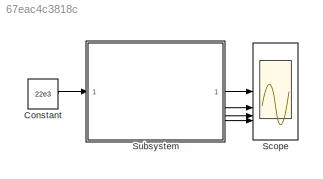
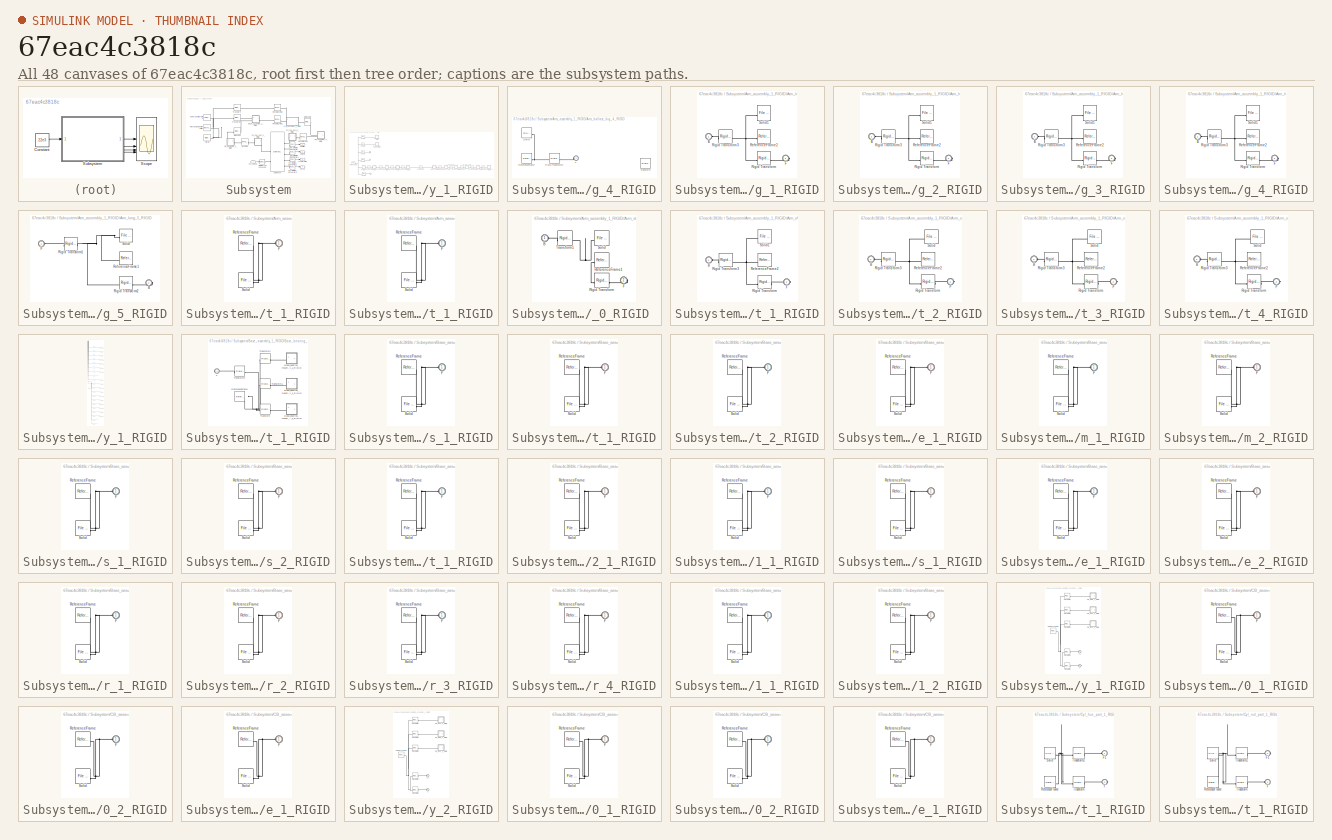
[diagram: thumbnail index - all 48 canvases of the model, root first then tree order]
MODEL slx_67eac4c3818c
KIND model
CONFIG AbsTol = auto
CONFIG EnableMultiTasking = off
CONFIG FixedStep = auto
CONFIG MaxStep = auto
CONFIG MinStep = auto
CONFIG RelTol = 1e-3
CONFIG SampleTimeConstraint = Unconstrained
CONFIG SolverName = VariableStepAuto
CONFIG StartTime = 0.0
CONFIG StopTime = 3
WORKSPACE source: external: MATLAB File  (data not in archive)
BLOCK [Constant] Constant
  Value = 22e3
BLOCK [Scope] Scope
  Floating = off
  NumInputPorts = 4
  ScopeSpecificationString = Simulink.scopes.TimeScopeBlockCfg('CurrentConfiguration', extmgr.ConfigurationSet(extmgr.Configuration('Core','General UI',true,'FigureColor',[1 1 1]),extmgr.Configuration('Core','Source UI',true),extmgr.Configuration('Sources','WiredSimulink',true),extmgr.Configuration('Visuals','Time Domain',true,'SerializedDisplays',{struct('MinYLimReal','-0.03016','MaxYLimReal','0.27141','YLabelReal','','MinYL...<+3939ch>
BLOCK [SubSystem] Subsystem
BLOCK [Outport] Subsystem/Acceleration
  Port = 3
  VectorParamsAs1DForOutWhenUnconnected = off
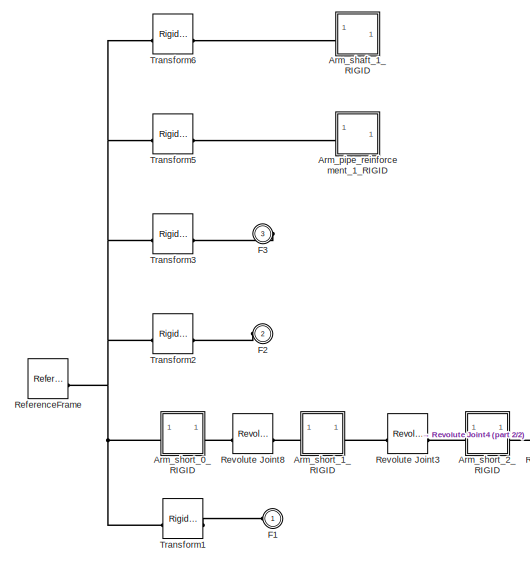
[diagram: Subsystem/Arm_assembly_1_RIGID - part 1/2, left side, full height]
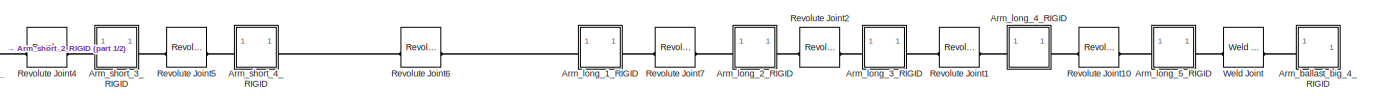
[diagram: Subsystem/Arm_assembly_1_RIGID - part 2/2, bottom center region]
BLOCK [SubSystem] Subsystem/Arm_assembly_1_RIGID
BLOCK [SubSystem] Subsystem/Arm_assembly_1_RIGID/Arm_ballast_big_4_RIGID
BLOCK [PMIOPort] Subsystem/Arm_assembly_1_RIGID/Arm_ballast_big_4_RIGID/F
  Side = Left
BLOCK [Reference] Subsystem/Arm_assembly_1_RIGID/Arm_ballast_big_4_RIGID/ReferenceFrame  REF=sm_lib/Frames and
Transforms/Reference
Frame
  SourceBlock = sm_lib/Frames and\nTransforms/Reference\nFrame
  SourceType = Reference\nFrame
BLOCK [Reference] Subsystem/Arm_assembly_1_RIGID/Arm_ballast_big_4_RIGID/Rigid Transform2  REF=sm_lib/Frames and
Transforms/Rigid
Transform
  SourceBlock = sm_lib/Frames and\nTransforms/Rigid\nTransform
  SourceType = Rigid\nTransform
BLOCK [Reference] Subsystem/Arm_assembly_1_RIGID/Arm_ballast_big_4_RIGID/Solid  REF=sm_lib/Body Elements/File Solid
  SourceBlock = sm_lib/Body Elements/File Solid
  SourceType = File Solid
BLOCK [Reference] Subsystem/Arm_assembly_1_RIGID/Arm_ballast_big_4_RIGID/Transform  REF=sm_lib/Frames and
Transforms/Rigid
Transform
  Commented = on
  SourceBlock = sm_lib/Frames and\nTransforms/Rigid\nTransform
  SourceType = Rigid\nTransform
BLOCK [SubSystem] Subsystem/Arm_assembly_1_RIGID/Arm_long_1_RIGID
BLOCK [PMIOPort] Subsystem/Arm_assembly_1_RIGID/Arm_long_1_RIGID/B
  NameLocation = top
  Side = Left
BLOCK [PMIOPort] Subsystem/Arm_assembly_1_RIGID/Arm_long_1_RIGID/F
  Port = 2
  Side = Right
BLOCK [Reference] Subsystem/Arm_assembly_1_RIGID/Arm_long_1_RIGID/ReferenceFrame2  REF=sm_lib/Frames and
Transforms/Reference
Frame
  NameLocation = top
  SourceBlock = sm_lib/Frames and\nTransforms/Reference\nFrame
  SourceType = Reference\nFrame
BLOCK [Reference] Subsystem/Arm_assembly_1_RIGID/Arm_long_1_RIGID/Rigid Transform  REF=sm_lib/Frames and
Transforms/Rigid
Transform
  SourceBlock = sm_lib/Frames and\nTransforms/Rigid\nTransform
  SourceType = Rigid\nTransform
BLOCK [Reference] Subsystem/Arm_assembly_1_RIGID/Arm_long_1_RIGID/Rigid Transform3  REF=sm_lib/Frames and
Transforms/Rigid
Transform
  SourceBlock = sm_lib/Frames and\nTransforms/Rigid\nTransform
  SourceType = Rigid\nTransform
BLOCK [Reference] Subsystem/Arm_assembly_1_RIGID/Arm_long_1_RIGID/Solid1  REF=sm_lib/Body Elements/File Solid
  NameLocation = top
  SourceBlock = sm_lib/Body Elements/File Solid
  SourceType = File Solid
BLOCK [SubSystem] Subsystem/Arm_assembly_1_RIGID/Arm_long_2_RIGID
BLOCK [PMIOPort] Subsystem/Arm_assembly_1_RIGID/Arm_long_2_RIGID/B
  NameLocation = top
  Side = Left
BLOCK [PMIOPort] Subsystem/Arm_assembly_1_RIGID/Arm_long_2_RIGID/F
  Port = 2
  Side = Right
BLOCK [Reference] Subsystem/Arm_assembly_1_RIGID/Arm_long_2_RIGID/ReferenceFrame2  REF=sm_lib/Frames and
Transforms/Reference
Frame
  NameLocation = top
  SourceBlock = sm_lib/Frames and\nTransforms/Reference\nFrame
  SourceType = Reference\nFrame
BLOCK [Reference] Subsystem/Arm_assembly_1_RIGID/Arm_long_2_RIGID/Rigid Transform  REF=sm_lib/Frames and
Transforms/Rigid
Transform
  SourceBlock = sm_lib/Frames and\nTransforms/Rigid\nTransform
  SourceType = Rigid\nTransform
BLOCK [Reference] Subsystem/Arm_assembly_1_RIGID/Arm_long_2_RIGID/Rigid Transform3  REF=sm_lib/Frames and
Transforms/Rigid
Transform
  SourceBlock = sm_lib/Frames and\nTransforms/Rigid\nTransform
  SourceType = Rigid\nTransform
BLOCK [Reference] Subsystem/Arm_assembly_1_RIGID/Arm_long_2_RIGID/Solid1  REF=sm_lib/Body Elements/File Solid
  NameLocation = top
  SourceBlock = sm_lib/Body Elements/File Solid
  SourceType = File Solid
BLOCK [SubSystem] Subsystem/Arm_assembly_1_RIGID/Arm_long_3_RIGID
BLOCK [PMIOPort] Subsystem/Arm_assembly_1_RIGID/Arm_long_3_RIGID/B
  NameLocation = top
  Side = Left
BLOCK [PMIOPort] Subsystem/Arm_assembly_1_RIGID/Arm_long_3_RIGID/F
  Port = 2
  Side = Right
BLOCK [Reference] Subsystem/Arm_assembly_1_RIGID/Arm_long_3_RIGID/ReferenceFrame2  REF=sm_lib/Frames and
Transforms/Reference
Frame
  NameLocation = top
  SourceBlock = sm_lib/Frames and\nTransforms/Reference\nFrame
  SourceType = Reference\nFrame
BLOCK [Reference] Subsystem/Arm_assembly_1_RIGID/Arm_long_3_RIGID/Rigid Transform  REF=sm_lib/Frames and
Transforms/Rigid
Transform
  SourceBlock = sm_lib/Frames and\nTransforms/Rigid\nTransform
  SourceType = Rigid\nTransform
BLOCK [Reference] Subsystem/Arm_assembly_1_RIGID/Arm_long_3_RIGID/Rigid Transform3  REF=sm_lib/Frames and
Transforms/Rigid
Transform
  SourceBlock = sm_lib/Frames and\nTransforms/Rigid\nTransform
  SourceType = Rigid\nTransform
BLOCK [Reference] Subsystem/Arm_assembly_1_RIGID/Arm_long_3_RIGID/Solid1  REF=sm_lib/Body Elements/File Solid
  NameLocation = top
  SourceBlock = sm_lib/Body Elements/File Solid
  SourceType = File Solid
BLOCK [SubSystem] Subsystem/Arm_assembly_1_RIGID/Arm_long_4_RIGID
BLOCK [PMIOPort] Subsystem/Arm_assembly_1_RIGID/Arm_long_4_RIGID/B
  NameLocation = top
  Side = Left
BLOCK [PMIOPort] Subsystem/Arm_assembly_1_RIGID/Arm_long_4_RIGID/F
  Port = 2
  Side = Right
BLOCK [Reference] Subsystem/Arm_assembly_1_RIGID/Arm_long_4_RIGID/ReferenceFrame2  REF=sm_lib/Frames and
Transforms/Reference
Frame
  NameLocation = top
  SourceBlock = sm_lib/Frames and\nTransforms/Reference\nFrame
  SourceType = Reference\nFrame
BLOCK [Reference] Subsystem/Arm_assembly_1_RIGID/Arm_long_4_RIGID/Rigid Transform  REF=sm_lib/Frames and
Transforms/Rigid
Transform
  SourceBlock = sm_lib/Frames and\nTransforms/Rigid\nTransform
  SourceType = Rigid\nTransform
BLOCK [Reference] Subsystem/Arm_assembly_1_RIGID/Arm_long_4_RIGID/Rigid Transform3  REF=sm_lib/Frames and
Transforms/Rigid
Transform
  SourceBlock = sm_lib/Frames and\nTransforms/Rigid\nTransform
  SourceType = Rigid\nTransform
BLOCK [Reference] Subsystem/Arm_assembly_1_RIGID/Arm_long_4_RIGID/Solid1  REF=sm_lib/Body Elements/File Solid
  NameLocation = top
  SourceBlock = sm_lib/Body Elements/File Solid
  SourceType = File Solid
BLOCK [SubSystem] Subsystem/Arm_assembly_1_RIGID/Arm_long_5_RIGID
BLOCK [PMIOPort] Subsystem/Arm_assembly_1_RIGID/Arm_long_5_RIGID/B
  Port = 2
  Side = Right
BLOCK [PMIOPort] Subsystem/Arm_assembly_1_RIGID/Arm_long_5_RIGID/F
  NameLocation = top
  Side = Left
BLOCK [Reference] Subsystem/Arm_assembly_1_RIGID/Arm_long_5_RIGID/ReferenceFrame1  REF=sm_lib/Frames and
Transforms/Reference
Frame
  NameLocation = top
  SourceBlock = sm_lib/Frames and\nTransforms/Reference\nFrame
  SourceType = Reference\nFrame
BLOCK [Reference] Subsystem/Arm_assembly_1_RIGID/Arm_long_5_RIGID/Rigid Transform1  REF=sm_lib/Frames and
Transforms/Rigid
Transform
  SourceBlock = sm_lib/Frames and\nTransforms/Rigid\nTransform
  SourceType = Rigid\nTransform
BLOCK [Reference] Subsystem/Arm_assembly_1_RIGID/Arm_long_5_RIGID/Rigid Transform2  REF=sm_lib/Frames and
Transforms/Rigid
Transform
  SourceBlock = sm_lib/Frames and\nTransforms/Rigid\nTransform
  SourceType = Rigid\nTransform
BLOCK [Reference] Subsystem/Arm_assembly_1_RIGID/Arm_long_5_RIGID/Solid  REF=sm_lib/Body Elements/File Solid
  NameLocation = top
  SourceBlock = sm_lib/Body Elements/File Solid
  SourceType = File Solid
BLOCK [SubSystem] Subsystem/Arm_assembly_1_RIGID/Arm_pipe_reinforcement_1_RIGID
BLOCK [PMIOPort] Subsystem/Arm_assembly_1_RIGID/Arm_pipe_reinforcement_1_RIGID/F
  Side = Left
BLOCK [Reference] Subsystem/Arm_assembly_1_RIGID/Arm_pipe_reinforcement_1_RIGID/ReferenceFrame  REF=sm_lib/Frames and
Transforms/Reference
Frame
  SourceBlock = sm_lib/Frames and\nTransforms/Reference\nFrame
  SourceType = Reference\nFrame
BLOCK [Reference] Subsystem/Arm_assembly_1_RIGID/Arm_pipe_reinforcement_1_RIGID/Solid  REF=sm_lib/Body Elements/File Solid
  SourceBlock = sm_lib/Body Elements/File Solid
  SourceType = File Solid
BLOCK [SubSystem] Subsystem/Arm_assembly_1_RIGID/Arm_shaft_1_RIGID
BLOCK [PMIOPort] Subsystem/Arm_assembly_1_RIGID/Arm_shaft_1_RIGID/F
  Side = Left
BLOCK [Reference] Subsystem/Arm_assembly_1_RIGID/Arm_shaft_1_RIGID/ReferenceFrame  REF=sm_lib/Frames and
Transforms/Reference
Frame
  SourceBlock = sm_lib/Frames and\nTransforms/Reference\nFrame
  SourceType = Reference\nFrame
BLOCK [Reference] Subsystem/Arm_assembly_1_RIGID/Arm_shaft_1_RIGID/Solid  REF=sm_lib/Body Elements/File Solid
  SourceBlock = sm_lib/Body Elements/File Solid
  SourceType = File Solid
BLOCK [SubSystem] Subsystem/Arm_assembly_1_RIGID/Arm_short_0_RIGID 
BLOCK [PMIOPort] Subsystem/Arm_assembly_1_RIGID/Arm_short_0_RIGID /B
  NameLocation = top
  Side = Left
BLOCK [PMIOPort] Subsystem/Arm_assembly_1_RIGID/Arm_short_0_RIGID /F
  Port = 2
  Side = Right
BLOCK [Reference] Subsystem/Arm_assembly_1_RIGID/Arm_short_0_RIGID /ReferenceFrame1  REF=sm_lib/Frames and
Transforms/Reference
Frame
  NameLocation = top
  SourceBlock = sm_lib/Frames and\nTransforms/Reference\nFrame
  SourceType = Reference\nFrame
BLOCK [Reference] Subsystem/Arm_assembly_1_RIGID/Arm_short_0_RIGID /Rigid Transform  REF=sm_lib/Frames and
Transforms/Rigid
Transform
  SourceBlock = sm_lib/Frames and\nTransforms/Rigid\nTransform
  SourceType = Rigid\nTransform
BLOCK [Reference] Subsystem/Arm_assembly_1_RIGID/Arm_short_0_RIGID /Solid  REF=sm_lib/Body Elements/File Solid
  NameLocation = top
  SourceBlock = sm_lib/Body Elements/File Solid
  SourceType = File Solid
BLOCK [Reference] Subsystem/Arm_assembly_1_RIGID/Arm_short_0_RIGID /Transform1  REF=sm_lib/Frames and
Transforms/Rigid
Transform
  SourceBlock = sm_lib/Frames and\nTransforms/Rigid\nTransform
  SourceType = Rigid\nTransform
BLOCK [SubSystem] Subsystem/Arm_assembly_1_RIGID/Arm_short_1_RIGID
BLOCK [PMIOPort] Subsystem/Arm_assembly_1_RIGID/Arm_short_1_RIGID/B
  NameLocation = top
  Side = Left
BLOCK [PMIOPort] Subsystem/Arm_assembly_1_RIGID/Arm_short_1_RIGID/F
  Port = 2
  Side = Right
BLOCK [Reference] Subsystem/Arm_assembly_1_RIGID/Arm_short_1_RIGID/ReferenceFrame2  REF=sm_lib/Frames and
Transforms/Reference
Frame
  NameLocation = top
  SourceBlock = sm_lib/Frames and\nTransforms/Reference\nFrame
  SourceType = Reference\nFrame
BLOCK [Reference] Subsystem/Arm_assembly_1_RIGID/Arm_short_1_RIGID/Rigid Transform  REF=sm_lib/Frames and
Transforms/Rigid
Transform
  SourceBlock = sm_lib/Frames and\nTransforms/Rigid\nTransform
  SourceType = Rigid\nTransform
BLOCK [Reference] Subsystem/Arm_assembly_1_RIGID/Arm_short_1_RIGID/Rigid Transform3  REF=sm_lib/Frames and
Transforms/Rigid
Transform
  SourceBlock = sm_lib/Frames and\nTransforms/Rigid\nTransform
  SourceType = Rigid\nTransform
BLOCK [Reference] Subsystem/Arm_assembly_1_RIGID/Arm_short_1_RIGID/Solid1  REF=sm_lib/Body Elements/File Solid
  NameLocation = top
  SourceBlock = sm_lib/Body Elements/File Solid
  SourceType = File Solid
BLOCK [SubSystem] Subsystem/Arm_assembly_1_RIGID/Arm_short_2_RIGID
BLOCK [PMIOPort] Subsystem/Arm_assembly_1_RIGID/Arm_short_2_RIGID/B
  NameLocation = top
  Side = Left
BLOCK [PMIOPort] Subsystem/Arm_assembly_1_RIGID/Arm_short_2_RIGID/F
  Port = 2
  Side = Right
BLOCK [Reference] Subsystem/Arm_assembly_1_RIGID/Arm_short_2_RIGID/ReferenceFrame2  REF=sm_lib/Frames and
Transforms/Reference
Frame
  NameLocation = top
  SourceBlock = sm_lib/Frames and\nTransforms/Reference\nFrame
  SourceType = Reference\nFrame
BLOCK [Reference] Subsystem/Arm_assembly_1_RIGID/Arm_short_2_RIGID/Rigid Transform  REF=sm_lib/Frames and
Transforms/Rigid
Transform
  SourceBlock = sm_lib/Frames and\nTransforms/Rigid\nTransform
  SourceType = Rigid\nTransform
BLOCK [Reference] Subsystem/Arm_assembly_1_RIGID/Arm_short_2_RIGID/Rigid Transform3  REF=sm_lib/Frames and
Transforms/Rigid
Transform
  SourceBlock = sm_lib/Frames and\nTransforms/Rigid\nTransform
  SourceType = Rigid\nTransform
BLOCK [Reference] Subsystem/Arm_assembly_1_RIGID/Arm_short_2_RIGID/Solid  REF=sm_lib/Body Elements/File Solid
  NameLocation = top
  SourceBlock = sm_lib/Body Elements/File Solid
  SourceType = File Solid
BLOCK [SubSystem] Subsystem/Arm_assembly_1_RIGID/Arm_short_3_RIGID
BLOCK [PMIOPort] Subsystem/Arm_assembly_1_RIGID/Arm_short_3_RIGID/B
  NameLocation = top
  Side = Left
BLOCK [PMIOPort] Subsystem/Arm_assembly_1_RIGID/Arm_short_3_RIGID/F
  Port = 2
  Side = Right
BLOCK [Reference] Subsystem/Arm_assembly_1_RIGID/Arm_short_3_RIGID/ReferenceFrame2  REF=sm_lib/Frames and
Transforms/Reference
Frame
  NameLocation = top
  SourceBlock = sm_lib/Frames and\nTransforms/Reference\nFrame
  SourceType = Reference\nFrame
BLOCK [Reference] Subsystem/Arm_assembly_1_RIGID/Arm_short_3_RIGID/Rigid Transform  REF=sm_lib/Frames and
Transforms/Rigid
Transform
  SourceBlock = sm_lib/Frames and\nTransforms/Rigid\nTransform
  SourceType = Rigid\nTransform
BLOCK [Reference] Subsystem/Arm_assembly_1_RIGID/Arm_short_3_RIGID/Rigid Transform3  REF=sm_lib/Frames and
Transforms/Rigid
Transform
  SourceBlock = sm_lib/Frames and\nTransforms/Rigid\nTransform
  SourceType = Rigid\nTransform
BLOCK [Reference] Subsystem/Arm_assembly_1_RIGID/Arm_short_3_RIGID/Solid  REF=sm_lib/Body Elements/File Solid
  NameLocation = top
  SourceBlock = sm_lib/Body Elements/File Solid
  SourceType = File Solid
BLOCK [SubSystem] Subsystem/Arm_assembly_1_RIGID/Arm_short_4_RIGID
BLOCK [PMIOPort] Subsystem/Arm_assembly_1_RIGID/Arm_short_4_RIGID/B
  NameLocation = top
  Side = Left
BLOCK [PMIOPort] Subsystem/Arm_assembly_1_RIGID/Arm_short_4_RIGID/F
  Port = 2
  Side = Right
BLOCK [Reference] Subsystem/Arm_assembly_1_RIGID/Arm_short_4_RIGID/ReferenceFrame2  REF=sm_lib/Frames and
Transforms/Reference
Frame
  NameLocation = top
  SourceBlock = sm_lib/Frames and\nTransforms/Reference\nFrame
  SourceType = Reference\nFrame
BLOCK [Reference] Subsystem/Arm_assembly_1_RIGID/Arm_short_4_RIGID/Rigid Transform  REF=sm_lib/Frames and
Transforms/Rigid
Transform
  SourceBlock = sm_lib/Frames and\nTransforms/Rigid\nTransform
  SourceType = Rigid\nTransform
BLOCK [Reference] Subsystem/Arm_assembly_1_RIGID/Arm_short_4_RIGID/Rigid Transform3  REF=sm_lib/Frames and
Transforms/Rigid
Transform
  SourceBlock = sm_lib/Frames and\nTransforms/Rigid\nTransform
  SourceType = Rigid\nTransform
BLOCK [Reference] Subsystem/Arm_assembly_1_RIGID/Arm_short_4_RIGID/Solid  REF=sm_lib/Body Elements/File Solid
  NameLocation = top
  SourceBlock = sm_lib/Body Elements/File Solid
  SourceType = File Solid
BLOCK [PMIOPort] Subsystem/Arm_assembly_1_RIGID/F1
  Side = Left
BLOCK [PMIOPort] Subsystem/Arm_assembly_1_RIGID/F2
  Port = 2
  Side = Left
BLOCK [PMIOPort] Subsystem/Arm_assembly_1_RIGID/F3
  Port = 3
  Side = Right
BLOCK [Reference] Subsystem/Arm_assembly_1_RIGID/ReferenceFrame  REF=sm_lib/Frames and
Transforms/Reference
Frame
  SourceBlock = sm_lib/Frames and\nTransforms/Reference\nFrame
  SourceType = Reference\nFrame
BLOCK [Reference] Subsystem/Arm_assembly_1_RIGID/Revolute Joint1  REF=sm_lib/Joints/Revolute Joint
  SourceBlock = sm_lib/Joints/Revolute Joint
  SourceType = Revolute Joint
BLOCK [Reference] Subsystem/Arm_assembly_1_RIGID/Revolute Joint10  REF=sm_lib/Joints/Revolute Joint
  SourceBlock = sm_lib/Joints/Revolute Joint
  SourceType = Revolute Joint
BLOCK [Reference] Subsystem/Arm_assembly_1_RIGID/Revolute Joint2  REF=sm_lib/Joints/Revolute Joint
  SourceBlock = sm_lib/Joints/Revolute Joint
  SourceType = Revolute Joint
BLOCK [Reference] Subsystem/Arm_assembly_1_RIGID/Revolute Joint3  REF=sm_lib/Joints/Revolute Joint
  SourceBlock = sm_lib/Joints/Revolute Joint
  SourceType = Revolute Joint
BLOCK [Reference] Subsystem/Arm_assembly_1_RIGID/Revolute Joint4  REF=sm_lib/Joints/Revolute Joint
  SourceBlock = sm_lib/Joints/Revolute Joint
  SourceType = Revolute Joint
BLOCK [Reference] Subsystem/Arm_assembly_1_RIGID/Revolute Joint5  REF=sm_lib/Joints/Revolute Joint
  SourceBlock = sm_lib/Joints/Revolute Joint
  SourceType = Revolute Joint
BLOCK [Reference] Subsystem/Arm_assembly_1_RIGID/Revolute Joint6  REF=sm_lib/Joints/Revolute Joint
  SourceBlock = sm_lib/Joints/Revolute Joint
  SourceType = Revolute Joint
BLOCK [Reference] Subsystem/Arm_assembly_1_RIGID/Revolute Joint7  REF=sm_lib/Joints/Revolute Joint
  SourceBlock = sm_lib/Joints/Revolute Joint
  SourceType = Revolute Joint
BLOCK [Reference] Subsystem/Arm_assembly_1_RIGID/Revolute Joint8  REF=sm_lib/Joints/Revolute Joint
  SourceBlock = sm_lib/Joints/Revolute Joint
  SourceType = Revolute Joint
BLOCK [Reference] Subsystem/Arm_assembly_1_RIGID/Transform1  REF=sm_lib/Frames and
Transforms/Rigid
Transform
  SourceBlock = sm_lib/Frames and\nTransforms/Rigid\nTransform
  SourceType = Rigid\nTransform
BLOCK [Reference] Subsystem/Arm_assembly_1_RIGID/Transform2  REF=sm_lib/Frames and
Transforms/Rigid
Transform
  SourceBlock = sm_lib/Frames and\nTransforms/Rigid\nTransform
  SourceType = Rigid\nTransform
BLOCK [Reference] Subsystem/Arm_assembly_1_RIGID/Transform3  REF=sm_lib/Frames and
Transforms/Rigid
Transform
  SourceBlock = sm_lib/Frames and\nTransforms/Rigid\nTransform
  SourceType = Rigid\nTransform
BLOCK [Reference] Subsystem/Arm_assembly_1_RIGID/Transform5  REF=sm_lib/Frames and
Transforms/Rigid
Transform
  SourceBlock = sm_lib/Frames and\nTransforms/Rigid\nTransform
  SourceType = Rigid\nTransform
BLOCK [Reference] Subsystem/Arm_assembly_1_RIGID/Transform6  REF=sm_lib/Frames and
Transforms/Rigid
Transform
  SourceBlock = sm_lib/Frames and\nTransforms/Rigid\nTransform
  SourceType = Rigid\nTransform
BLOCK [Reference] Subsystem/Arm_assembly_1_RIGID/Weld Joint  REF=sm_lib/Joints/Weld Joint
  SourceBlock = sm_lib/Joints/Weld Joint
  SourceType = Weld Joint
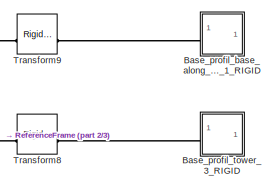
[diagram: Subsystem/Base_assembly_1_RIGID - part 1/3, top center region]
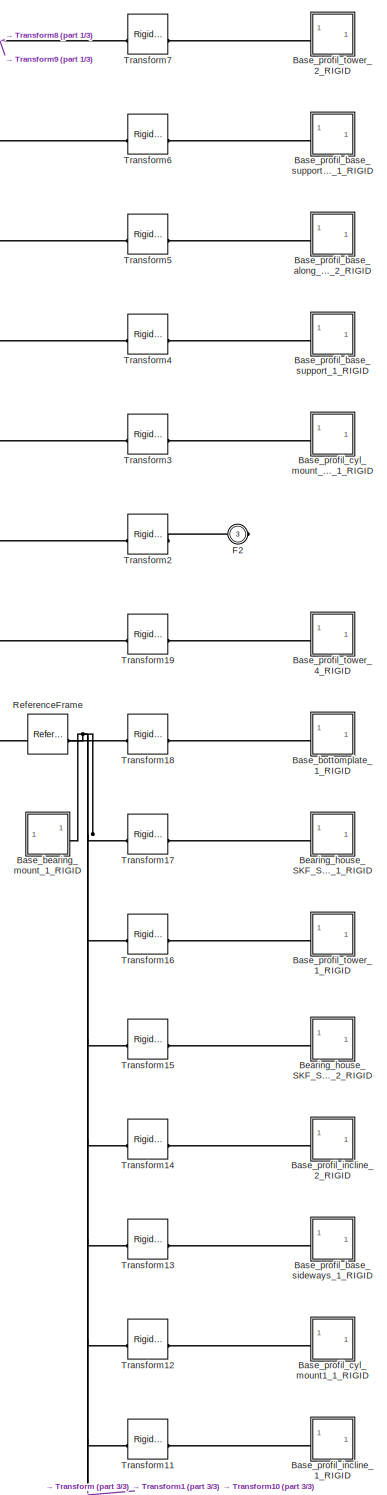
[diagram: Subsystem/Base_assembly_1_RIGID - part 2/3, full width, middle band]
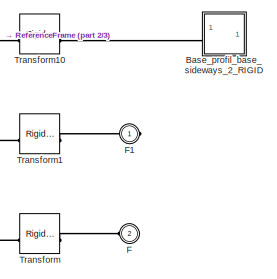
[diagram: Subsystem/Base_assembly_1_RIGID - part 3/3, bottom center region]
BLOCK [SubSystem] Subsystem/Base_assembly_1_RIGID
  NameLocation = top
BLOCK [SubSystem] Subsystem/Base_assembly_1_RIGID/Base_bearing_mount_1_RIGID
BLOCK [SubSystem] Subsystem/Base_assembly_1_RIGID/Base_bearing_mount_1_RIGID/Base_bearing_mount_sideways_1_RIGID
BLOCK [PMIOPort] Subsystem/Base_assembly_1_RIGID/Base_bearing_mount_1_RIGID/Base_bearing_mount_sideways_1_RIGID/F
  Side = Left
BLOCK [Reference] Subsystem/Base_assembly_1_RIGID/Base_bearing_mount_1_RIGID/Base_bearing_mount_sideways_1_RIGID/ReferenceFrame  REF=sm_lib/Frames and
Transforms/Reference
Frame
  SourceBlock = sm_lib/Frames and\nTransforms/Reference\nFrame
  SourceType = Reference\nFrame
BLOCK [Reference] Subsystem/Base_assembly_1_RIGID/Base_bearing_mount_1_RIGID/Base_bearing_mount_sideways_1_RIGID/Solid  REF=sm_lib/Body Elements/File Solid
  SourceBlock = sm_lib/Body Elements/File Solid
  SourceType = File Solid
BLOCK [SubSystem] Subsystem/Base_assembly_1_RIGID/Base_bearing_mount_1_RIGID/Base_bearing_mount_support_1_RIGID
BLOCK [PMIOPort] Subsystem/Base_assembly_1_RIGID/Base_bearing_mount_1_RIGID/Base_bearing_mount_support_1_RIGID/F
  Side = Left
BLOCK [Reference] Subsystem/Base_assembly_1_RIGID/Base_bearing_mount_1_RIGID/Base_bearing_mount_support_1_RIGID/ReferenceFrame  REF=sm_lib/Frames and
Transforms/Reference
Frame
  SourceBlock = sm_lib/Frames and\nTransforms/Reference\nFrame
  SourceType = Reference\nFrame
BLOCK [Reference] Subsystem/Base_assembly_1_RIGID/Base_bearing_mount_1_RIGID/Base_bearing_mount_support_1_RIGID/Solid  REF=sm_lib/Body Elements/File Solid
  SourceBlock = sm_lib/Body Elements/File Solid
  SourceType = File Solid
BLOCK [SubSystem] Subsystem/Base_assembly_1_RIGID/Base_bearing_mount_1_RIGID/Base_bearing_mount_support_2_RIGID
BLOCK [PMIOPort] Subsystem/Base_assembly_1_RIGID/Base_bearing_mount_1_RIGID/Base_bearing_mount_support_2_RIGID/F
  Side = Left
BLOCK [Reference] Subsystem/Base_assembly_1_RIGID/Base_bearing_mount_1_RIGID/Base_bearing_mount_support_2_RIGID/ReferenceFrame  REF=sm_lib/Frames and
Transforms/Reference
Frame
  SourceBlock = sm_lib/Frames and\nTransforms/Reference\nFrame
  SourceType = Reference\nFrame
BLOCK [Reference] Subsystem/Base_assembly_1_RIGID/Base_bearing_mount_1_RIGID/Base_bearing_mount_support_2_RIGID/Solid  REF=sm_lib/Body Elements/File Solid
  SourceBlock = sm_lib/Body Elements/File Solid
  SourceType = File Solid
BLOCK [PMIOPort] Subsystem/Base_assembly_1_RIGID/Base_bearing_mount_1_RIGID/F
  Side = Right
BLOCK [Reference] Subsystem/Base_assembly_1_RIGID/Base_bearing_mount_1_RIGID/ReferenceFrame  REF=sm_lib/Frames and
Transforms/Reference
Frame
  SourceBlock = sm_lib/Frames and\nTransforms/Reference\nFrame
  SourceType = Reference\nFrame
BLOCK [Reference] Subsystem/Base_assembly_1_RIGID/Base_bearing_mount_1_RIGID/Transform  REF=sm_lib/Frames and
Transforms/Rigid
Transform
  SourceBlock = sm_lib/Frames and\nTransforms/Rigid\nTransform
  SourceType = Rigid\nTransform
BLOCK [Reference] Subsystem/Base_assembly_1_RIGID/Base_bearing_mount_1_RIGID/Transform1  REF=sm_lib/Frames and
Transforms/Rigid
Transform
  SourceBlock = sm_lib/Frames and\nTransforms/Rigid\nTransform
  SourceType = Rigid\nTransform
BLOCK [Reference] Subsystem/Base_assembly_1_RIGID/Base_bearing_mount_1_RIGID/Transform2  REF=sm_lib/Frames and
Transforms/Rigid
Transform
  SourceBlock = sm_lib/Frames and\nTransforms/Rigid\nTransform
  SourceType = Rigid\nTransform
BLOCK [Reference] Subsystem/Base_assembly_1_RIGID/Base_bearing_mount_1_RIGID/Transform3  REF=sm_lib/Frames and
Transforms/Rigid
Transform
  SourceBlock = sm_lib/Frames and\nTransforms/Rigid\nTransform
  SourceType = Rigid\nTransform
BLOCK [SubSystem] Subsystem/Base_assembly_1_RIGID/Base_bottomplate_1_RIGID
BLOCK [PMIOPort] Subsystem/Base_assembly_1_RIGID/Base_bottomplate_1_RIGID/F
  Side = Left
BLOCK [Reference] Subsystem/Base_assembly_1_RIGID/Base_bottomplate_1_RIGID/ReferenceFrame  REF=sm_lib/Frames and
Transforms/Reference
Frame
  SourceBlock = sm_lib/Frames and\nTransforms/Reference\nFrame
  SourceType = Reference\nFrame
BLOCK [Reference] Subsystem/Base_assembly_1_RIGID/Base_bottomplate_1_RIGID/Solid  REF=sm_lib/Body Elements/File Solid
  SourceBlock = sm_lib/Body Elements/File Solid
  SourceType = File Solid
BLOCK [SubSystem] Subsystem/Base_assembly_1_RIGID/Base_profil_base_along_arm_1_RIGID
BLOCK [PMIOPort] Subsystem/Base_assembly_1_RIGID/Base_profil_base_along_arm_1_RIGID/F
  Side = Left
BLOCK [Reference] Subsystem/Base_assembly_1_RIGID/Base_profil_base_along_arm_1_RIGID/ReferenceFrame  REF=sm_lib/Frames and
Transforms/Reference
Frame
  SourceBlock = sm_lib/Frames and\nTransforms/Reference\nFrame
  SourceType = Reference\nFrame
BLOCK [Reference] Subsystem/Base_assembly_1_RIGID/Base_profil_base_along_arm_1_RIGID/Solid  REF=sm_lib/Body Elements/File Solid
  SourceBlock = sm_lib/Body Elements/File Solid
  SourceType = File Solid
BLOCK [SubSystem] Subsystem/Base_assembly_1_RIGID/Base_profil_base_along_arm_2_RIGID
BLOCK [PMIOPort] Subsystem/Base_assembly_1_RIGID/Base_profil_base_along_arm_2_RIGID/F
  Side = Left
BLOCK [Reference] Subsystem/Base_assembly_1_RIGID/Base_profil_base_along_arm_2_RIGID/ReferenceFrame  REF=sm_lib/Frames and
Transforms/Reference
Frame
  SourceBlock = sm_lib/Frames and\nTransforms/Reference\nFrame
  SourceType = Reference\nFrame
BLOCK [Reference] Subsystem/Base_assembly_1_RIGID/Base_profil_base_along_arm_2_RIGID/Solid  REF=sm_lib/Body Elements/File Solid
  SourceBlock = sm_lib/Body Elements/File Solid
  SourceType = File Solid
BLOCK [SubSystem] Subsystem/Base_assembly_1_RIGID/Base_profil_base_sideways_1_RIGID
BLOCK [PMIOPort] Subsystem/Base_assembly_1_RIGID/Base_profil_base_sideways_1_RIGID/F
  Side = Left
BLOCK [Reference] Subsystem/Base_assembly_1_RIGID/Base_profil_base_sideways_1_RIGID/ReferenceFrame  REF=sm_lib/Frames and
Transforms/Reference
Frame
  SourceBlock = sm_lib/Frames and\nTransforms/Reference\nFrame
  SourceType = Reference\nFrame
BLOCK [Reference] Subsystem/Base_assembly_1_RIGID/Base_profil_base_sideways_1_RIGID/Solid  REF=sm_lib/Body Elements/File Solid
  SourceBlock = sm_lib/Body Elements/File Solid
  SourceType = File Solid
BLOCK [SubSystem] Subsystem/Base_assembly_1_RIGID/Base_profil_base_sideways_2_RIGID
BLOCK [PMIOPort] Subsystem/Base_assembly_1_RIGID/Base_profil_base_sideways_2_RIGID/F
  Side = Left
BLOCK [Reference] Subsystem/Base_assembly_1_RIGID/Base_profil_base_sideways_2_RIGID/ReferenceFrame  REF=sm_lib/Frames and
Transforms/Reference
Frame
  SourceBlock = sm_lib/Frames and\nTransforms/Reference\nFrame
  SourceType = Reference\nFrame
BLOCK [Reference] Subsystem/Base_assembly_1_RIGID/Base_profil_base_sideways_2_RIGID/Solid  REF=sm_lib/Body Elements/File Solid
  SourceBlock = sm_lib/Body Elements/File Solid
  SourceType = File Solid
BLOCK [SubSystem] Subsystem/Base_assembly_1_RIGID/Base_profil_base_support_1_RIGID
BLOCK [PMIOPort] Subsystem/Base_assembly_1_RIGID/Base_profil_base_support_1_RIGID/F
  Side = Left
BLOCK [Reference] Subsystem/Base_assembly_1_RIGID/Base_profil_base_support_1_RIGID/ReferenceFrame  REF=sm_lib/Frames and
Transforms/Reference
Frame
  SourceBlock = sm_lib/Frames and\nTransforms/Reference\nFrame
  SourceType = Reference\nFrame
BLOCK [Reference] Subsystem/Base_assembly_1_RIGID/Base_profil_base_support_1_RIGID/Solid  REF=sm_lib/Body Elements/File Solid
  SourceBlock = sm_lib/Body Elements/File Solid
  SourceType = File Solid
BLOCK [SubSystem] Subsystem/Base_assembly_1_RIGID/Base_profil_base_support_2_1_RIGID
BLOCK [PMIOPort] Subsystem/Base_assembly_1_RIGID/Base_profil_base_support_2_1_RIGID/F
  Side = Left
BLOCK [Reference] Subsystem/Base_assembly_1_RIGID/Base_profil_base_support_2_1_RIGID/ReferenceFrame  REF=sm_lib/Frames and
Transforms/Reference
Frame
  SourceBlock = sm_lib/Frames and\nTransforms/Reference\nFrame
  SourceType = Reference\nFrame
BLOCK [Reference] Subsystem/Base_assembly_1_RIGID/Base_profil_base_support_2_1_RIGID/Solid  REF=sm_lib/Body Elements/File Solid
  SourceBlock = sm_lib/Body Elements/File Solid
  SourceType = File Solid
BLOCK [SubSystem] Subsystem/Base_assembly_1_RIGID/Base_profil_cyl_mount1_1_RIGID
BLOCK [PMIOPort] Subsystem/Base_assembly_1_RIGID/Base_profil_cyl_mount1_1_RIGID/F
  Side = Left
BLOCK [Reference] Subsystem/Base_assembly_1_RIGID/Base_profil_cyl_mount1_1_RIGID/ReferenceFrame  REF=sm_lib/Frames and
Transforms/Reference
Frame
  SourceBlock = sm_lib/Frames and\nTransforms/Reference\nFrame
  SourceType = Reference\nFrame
BLOCK [Reference] Subsystem/Base_assembly_1_RIGID/Base_profil_cyl_mount1_1_RIGID/Solid  REF=sm_lib/Body Elements/File Solid
  SourceBlock = sm_lib/Body Elements/File Solid
  SourceType = File Solid
BLOCK [SubSystem] Subsystem/Base_assembly_1_RIGID/Base_profil_cyl_mount_support_sideways_1_RIGID
BLOCK [PMIOPort] Subsystem/Base_assembly_1_RIGID/Base_profil_cyl_mount_support_sideways_1_RIGID/F
  Side = Left
BLOCK [Reference] Subsystem/Base_assembly_1_RIGID/Base_profil_cyl_mount_support_sideways_1_RIGID/ReferenceFrame  REF=sm_lib/Frames and
Transforms/Reference
Frame
  SourceBlock = sm_lib/Frames and\nTransforms/Reference\nFrame
  SourceType = Reference\nFrame
BLOCK [Reference] Subsystem/Base_assembly_1_RIGID/Base_profil_cyl_mount_support_sideways_1_RIGID/Solid  REF=sm_lib/Body Elements/File Solid
  SourceBlock = sm_lib/Body Elements/File Solid
  SourceType = File Solid
BLOCK [SubSystem] Subsystem/Base_assembly_1_RIGID/Base_profil_incline_1_RIGID
BLOCK [PMIOPort] Subsystem/Base_assembly_1_RIGID/Base_profil_incline_1_RIGID/F
  Side = Left
BLOCK [Reference] Subsystem/Base_assembly_1_RIGID/Base_profil_incline_1_RIGID/ReferenceFrame  REF=sm_lib/Frames and
Transforms/Reference
Frame
  SourceBlock = sm_lib/Frames and\nTransforms/Reference\nFrame
  SourceType = Reference\nFrame
BLOCK [Reference] Subsystem/Base_assembly_1_RIGID/Base_profil_incline_1_RIGID/Solid  REF=sm_lib/Body Elements/File Solid
  SourceBlock = sm_lib/Body Elements/File Solid
  SourceType = File Solid
BLOCK [SubSystem] Subsystem/Base_assembly_1_RIGID/Base_profil_incline_2_RIGID
BLOCK [PMIOPort] Subsystem/Base_assembly_1_RIGID/Base_profil_incline_2_RIGID/F
  Side = Left
BLOCK [Reference] Subsystem/Base_assembly_1_RIGID/Base_profil_incline_2_RIGID/ReferenceFrame  REF=sm_lib/Frames and
Transforms/Reference
Frame
  SourceBlock = sm_lib/Frames and\nTransforms/Reference\nFrame
  SourceType = Reference\nFrame
BLOCK [Reference] Subsystem/Base_assembly_1_RIGID/Base_profil_incline_2_RIGID/Solid  REF=sm_lib/Body Elements/File Solid
  SourceBlock = sm_lib/Body Elements/File Solid
  SourceType = File Solid
BLOCK [SubSystem] Subsystem/Base_assembly_1_RIGID/Base_profil_tower_1_RIGID
BLOCK [PMIOPort] Subsystem/Base_assembly_1_RIGID/Base_profil_tower_1_RIGID/F
  Side = Left
BLOCK [Reference] Subsystem/Base_assembly_1_RIGID/Base_profil_tower_1_RIGID/ReferenceFrame  REF=sm_lib/Frames and
Transforms/Reference
Frame
  SourceBlock = sm_lib/Frames and\nTransforms/Reference\nFrame
  SourceType = Reference\nFrame
BLOCK [Reference] Subsystem/Base_assembly_1_RIGID/Base_profil_tower_1_RIGID/Solid  REF=sm_lib/Body Elements/File Solid
  SourceBlock = sm_lib/Body Elements/File Solid
  SourceType = File Solid
BLOCK [SubSystem] Subsystem/Base_assembly_1_RIGID/Base_profil_tower_2_RIGID
BLOCK [PMIOPort] Subsystem/Base_assembly_1_RIGID/Base_profil_tower_2_RIGID/F
  Side = Left
BLOCK [Reference] Subsystem/Base_assembly_1_RIGID/Base_profil_tower_2_RIGID/ReferenceFrame  REF=sm_lib/Frames and
Transforms/Reference
Frame
  SourceBlock = sm_lib/Frames and\nTransforms/Reference\nFrame
  SourceType = Reference\nFrame
BLOCK [Reference] Subsystem/Base_assembly_1_RIGID/Base_profil_tower_2_RIGID/Solid  REF=sm_lib/Body Elements/File Solid
  SourceBlock = sm_lib/Body Elements/File Solid
  SourceType = File Solid
BLOCK [SubSystem] Subsystem/Base_assembly_1_RIGID/Base_profil_tower_3_RIGID
BLOCK [PMIOPort] Subsystem/Base_assembly_1_RIGID/Base_profil_tower_3_RIGID/F
  Side = Left
BLOCK [Reference] Subsystem/Base_assembly_1_RIGID/Base_profil_tower_3_RIGID/ReferenceFrame  REF=sm_lib/Frames and
Transforms/Reference
Frame
  SourceBlock = sm_lib/Frames and\nTransforms/Reference\nFrame
  SourceType = Reference\nFrame
BLOCK [Reference] Subsystem/Base_assembly_1_RIGID/Base_profil_tower_3_RIGID/Solid  REF=sm_lib/Body Elements/File Solid
  SourceBlock = sm_lib/Body Elements/File Solid
  SourceType = File Solid
BLOCK [SubSystem] Subsystem/Base_assembly_1_RIGID/Base_profil_tower_4_RIGID
BLOCK [PMIOPort] Subsystem/Base_assembly_1_RIGID/Base_profil_tower_4_RIGID/F
  Side = Left
BLOCK [Reference] Subsystem/Base_assembly_1_RIGID/Base_profil_tower_4_RIGID/ReferenceFrame  REF=sm_lib/Frames and
Transforms/Reference
Frame
  SourceBlock = sm_lib/Frames and\nTransforms/Reference\nFrame
  SourceType = Reference\nFrame
BLOCK [Reference] Subsystem/Base_assembly_1_RIGID/Base_profil_tower_4_RIGID/Solid  REF=sm_lib/Body Elements/File Solid
  SourceBlock = sm_lib/Body Elements/File Solid
  SourceType = File Solid
BLOCK [SubSystem] Subsystem/Base_assembly_1_RIGID/Bearing_house_SKF_SNA_513_611_1_RIGID
BLOCK [PMIOPort] Subsystem/Base_assembly_1_RIGID/Bearing_house_SKF_SNA_513_611_1_RIGID/F
  Side = Left
BLOCK [Reference] Subsystem/Base_assembly_1_RIGID/Bearing_house_SKF_SNA_513_611_1_RIGID/ReferenceFrame  REF=sm_lib/Frames and
Transforms/Reference
Frame
  SourceBlock = sm_lib/Frames and\nTransforms/Reference\nFrame
  SourceType = Reference\nFrame
BLOCK [Reference] Subsystem/Base_assembly_1_RIGID/Bearing_house_SKF_SNA_513_611_1_RIGID/Solid  REF=sm_lib/Body Elements/File Solid
  SourceBlock = sm_lib/Body Elements/File Solid
  SourceType = File Solid
BLOCK [SubSystem] Subsystem/Base_assembly_1_RIGID/Bearing_house_SKF_SNA_513_611_2_RIGID
BLOCK [PMIOPort] Subsystem/Base_assembly_1_RIGID/Bearing_house_SKF_SNA_513_611_2_RIGID/F
  Side = Left
BLOCK [Reference] Subsystem/Base_assembly_1_RIGID/Bearing_house_SKF_SNA_513_611_2_RIGID/ReferenceFrame  REF=sm_lib/Frames and
Transforms/Reference
Frame
  SourceBlock = sm_lib/Frames and\nTransforms/Reference\nFrame
  SourceType = Reference\nFrame
BLOCK [Reference] Subsystem/Base_assembly_1_RIGID/Bearing_house_SKF_SNA_513_611_2_RIGID/Solid  REF=sm_lib/Body Elements/File Solid
  SourceBlock = sm_lib/Body Elements/File Solid
  SourceType = File Solid
BLOCK [PMIOPort] Subsystem/Base_assembly_1_RIGID/F
  Port = 2
  Side = Left
BLOCK [PMIOPort] Subsystem/Base_assembly_1_RIGID/F1
  Side = Right
BLOCK [PMIOPort] Subsystem/Base_assembly_1_RIGID/F2
  Port = 3
  Side = Right
BLOCK [Reference] Subsystem/Base_assembly_1_RIGID/ReferenceFrame  REF=sm_lib/Frames and
Transforms/Reference
Frame
  SourceBlock = sm_lib/Frames and\nTransforms/Reference\nFrame
  SourceType = Reference\nFrame
BLOCK [Reference] Subsystem/Base_assembly_1_RIGID/Transform  REF=sm_lib/Frames and
Transforms/Rigid
Transform
  SourceBlock = sm_lib/Frames and\nTransforms/Rigid\nTransform
  SourceType = Rigid\nTransform
BLOCK [Reference] Subsystem/Base_assembly_1_RIGID/Transform1  REF=sm_lib/Frames and
Transforms/Rigid
Transform
  SourceBlock = sm_lib/Frames and\nTransforms/Rigid\nTransform
  SourceType = Rigid\nTransform
BLOCK [Reference] Subsystem/Base_assembly_1_RIGID/Transform10  REF=sm_lib/Frames and
Transforms/Rigid
Transform
  SourceBlock = sm_lib/Frames and\nTransforms/Rigid\nTransform
  SourceType = Rigid\nTransform
BLOCK [Reference] Subsystem/Base_assembly_1_RIGID/Transform11  REF=sm_lib/Frames and
Transforms/Rigid
Transform
  SourceBlock = sm_lib/Frames and\nTransforms/Rigid\nTransform
  SourceType = Rigid\nTransform
BLOCK [Reference] Subsystem/Base_assembly_1_RIGID/Transform12  REF=sm_lib/Frames and
Transforms/Rigid
Transform
  SourceBlock = sm_lib/Frames and\nTransforms/Rigid\nTransform
  SourceType = Rigid\nTransform
BLOCK [Reference] Subsystem/Base_assembly_1_RIGID/Transform13  REF=sm_lib/Frames and
Transforms/Rigid
Transform
  SourceBlock = sm_lib/Frames and\nTransforms/Rigid\nTransform
  SourceType = Rigid\nTransform
BLOCK [Reference] Subsystem/Base_assembly_1_RIGID/Transform14  REF=sm_lib/Frames and
Transforms/Rigid
Transform
  SourceBlock = sm_lib/Frames and\nTransforms/Rigid\nTransform
  SourceType = Rigid\nTransform
BLOCK [Reference] Subsystem/Base_assembly_1_RIGID/Transform15  REF=sm_lib/Frames and
Transforms/Rigid
Transform
  SourceBlock = sm_lib/Frames and\nTransforms/Rigid\nTransform
  SourceType = Rigid\nTransform
BLOCK [Reference] Subsystem/Base_assembly_1_RIGID/Transform16  REF=sm_lib/Frames and
Transforms/Rigid
Transform
  SourceBlock = sm_lib/Frames and\nTransforms/Rigid\nTransform
  SourceType = Rigid\nTransform
BLOCK [Reference] Subsystem/Base_assembly_1_RIGID/Transform17  REF=sm_lib/Frames and
Transforms/Rigid
Transform
  SourceBlock = sm_lib/Frames and\nTransforms/Rigid\nTransform
  SourceType = Rigid\nTransform
BLOCK [Reference] Subsystem/Base_assembly_1_RIGID/Transform18  REF=sm_lib/Frames and
Transforms/Rigid
Transform
  SourceBlock = sm_lib/Frames and\nTransforms/Rigid\nTransform
  SourceType = Rigid\nTransform
BLOCK [Reference] Subsystem/Base_assembly_1_RIGID/Transform19  REF=sm_lib/Frames and
Transforms/Rigid
Transform
  SourceBlock = sm_lib/Frames and\nTransforms/Rigid\nTransform
  SourceType = Rigid\nTransform
BLOCK [Reference] Subsystem/Base_assembly_1_RIGID/Transform2  REF=sm_lib/Frames and
Transforms/Rigid
Transform
  SourceBlock = sm_lib/Frames and\nTransforms/Rigid\nTransform
  SourceType = Rigid\nTransform
BLOCK [Reference] Subsystem/Base_assembly_1_RIGID/Transform3  REF=sm_lib/Frames and
Transforms/Rigid
Transform
  SourceBlock = sm_lib/Frames and\nTransforms/Rigid\nTransform
  SourceType = Rigid\nTransform
BLOCK [Reference] Subsystem/Base_assembly_1_RIGID/Transform4  REF=sm_lib/Frames and
Transforms/Rigid
Transform
  SourceBlock = sm_lib/Frames and\nTransforms/Rigid\nTransform
  SourceType = Rigid\nTransform
BLOCK [Reference] Subsystem/Base_assembly_1_RIGID/Transform5  REF=sm_lib/Frames and
Transforms/Rigid
Transform
  SourceBlock = sm_lib/Frames and\nTransforms/Rigid\nTransform
  SourceType = Rigid\nTransform
BLOCK [Reference] Subsystem/Base_assembly_1_RIGID/Transform6  REF=sm_lib/Frames and
Transforms/Rigid
Transform
  SourceBlock = sm_lib/Frames and\nTransforms/Rigid\nTransform
  SourceType = Rigid\nTransform
BLOCK [Reference] Subsystem/Base_assembly_1_RIGID/Transform7  REF=sm_lib/Frames and
Transforms/Rigid
Transform
  SourceBlock = sm_lib/Frames and\nTransforms/Rigid\nTransform
  SourceType = Rigid\nTransform
BLOCK [Reference] Subsystem/Base_assembly_1_RIGID/Transform8  REF=sm_lib/Frames and
Transforms/Rigid
Transform
  SourceBlock = sm_lib/Frames and\nTransforms/Rigid\nTransform
  SourceType = Rigid\nTransform
BLOCK [Reference] Subsystem/Base_assembly_1_RIGID/Transform9  REF=sm_lib/Frames and
Transforms/Rigid
Transform
  SourceBlock = sm_lib/Frames and\nTransforms/Rigid\nTransform
  SourceType = Rigid\nTransform
BLOCK [SubSystem] Subsystem/CB_assembly_1_RIGID
BLOCK [SubSystem] Subsystem/CB_assembly_1_RIGID/CB_850_1_RIGID
BLOCK [PMIOPort] Subsystem/CB_assembly_1_RIGID/CB_850_1_RIGID/F
  Side = Left
BLOCK [Reference] Subsystem/CB_assembly_1_RIGID/CB_850_1_RIGID/ReferenceFrame  REF=sm_lib/Frames and
Transforms/Reference
Frame
  SourceBlock = sm_lib/Frames and\nTransforms/Reference\nFrame
  SourceType = Reference\nFrame
BLOCK [Reference] Subsystem/CB_assembly_1_RIGID/CB_850_1_RIGID/Solid  REF=sm_lib/Body Elements/File Solid
  SourceBlock = sm_lib/Body Elements/File Solid
  SourceType = File Solid
BLOCK [SubSystem] Subsystem/CB_assembly_1_RIGID/CB_850_2_RIGID
BLOCK [PMIOPort] Subsystem/CB_assembly_1_RIGID/CB_850_2_RIGID/F
  Side = Left
BLOCK [Reference] Subsystem/CB_assembly_1_RIGID/CB_850_2_RIGID/ReferenceFrame  REF=sm_lib/Frames and
Transforms/Reference
Frame
  SourceBlock = sm_lib/Frames and\nTransforms/Reference\nFrame
  SourceType = Reference\nFrame
BLOCK [Reference] Subsystem/CB_assembly_1_RIGID/CB_850_2_RIGID/Solid  REF=sm_lib/Body Elements/File Solid
  SourceBlock = sm_lib/Body Elements/File Solid
  SourceType = File Solid
BLOCK [SubSystem] Subsystem/CB_assembly_1_RIGID/CB_plate_1_RIGID
BLOCK [PMIOPort] Subsystem/CB_assembly_1_RIGID/CB_plate_1_RIGID/F
  Side = Left
BLOCK [Reference] Subsystem/CB_assembly_1_RIGID/CB_plate_1_RIGID/ReferenceFrame  REF=sm_lib/Frames and
Transforms/Reference
Frame
  SourceBlock = sm_lib/Frames and\nTransforms/Reference\nFrame
  SourceType = Reference\nFrame
BLOCK [Reference] Subsystem/CB_assembly_1_RIGID/CB_plate_1_RIGID/Solid  REF=sm_lib/Body Elements/File Solid
  SourceBlock = sm_lib/Body Elements/File Solid
  SourceType = File Solid
BLOCK [PMIOPort] Subsystem/CB_assembly_1_RIGID/F
  Port = 2
  Side = Right
BLOCK [PMIOPort] Subsystem/CB_assembly_1_RIGID/F1
  Side = Left
BLOCK [Reference] Subsystem/CB_assembly_1_RIGID/ReferenceFrame  REF=sm_lib/Frames and
Transforms/Reference
Frame
  SourceBlock = sm_lib/Frames and\nTransforms/Reference\nFrame
  SourceType = Reference\nFrame
BLOCK [Reference] Subsystem/CB_assembly_1_RIGID/Transform  REF=sm_lib/Frames and
Transforms/Rigid
Transform
  SourceBlock = sm_lib/Frames and\nTransforms/Rigid\nTransform
  SourceType = Rigid\nTransform
BLOCK [Reference] Subsystem/CB_assembly_1_RIGID/Transform1  REF=sm_lib/Frames and
Transforms/Rigid
Transform
  SourceBlock = sm_lib/Frames and\nTransforms/Rigid\nTransform
  SourceType = Rigid\nTransform
BLOCK [Reference] Subsystem/CB_assembly_1_RIGID/Transform3  REF=sm_lib/Frames and
Transforms/Rigid
Transform
  SourceBlock = sm_lib/Frames and\nTransforms/Rigid\nTransform
  SourceType = Rigid\nTransform
BLOCK [Reference] Subsystem/CB_assembly_1_RIGID/Transform4  REF=sm_lib/Frames and
Transforms/Rigid
Transform
  SourceBlock = sm_lib/Frames and\nTransforms/Rigid\nTransform
  SourceType = Rigid\nTransform
BLOCK [Reference] Subsystem/CB_assembly_1_RIGID/Transform5  REF=sm_lib/Frames and
Transforms/Rigid
Transform
  SourceBlock = sm_lib/Frames and\nTransforms/Rigid\nTransform
  SourceType = Rigid\nTransform
BLOCK [SubSystem] Subsystem/CB_assembly_2_RIGID
BLOCK [SubSystem] Subsystem/CB_assembly_2_RIGID/CB_850_1_RIGID
BLOCK [PMIOPort] Subsystem/CB_assembly_2_RIGID/CB_850_1_RIGID/F
  Side = Left
BLOCK [Reference] Subsystem/CB_assembly_2_RIGID/CB_850_1_RIGID/ReferenceFrame  REF=sm_lib/Frames and
Transforms/Reference
Frame
  SourceBlock = sm_lib/Frames and\nTransforms/Reference\nFrame
  SourceType = Reference\nFrame
BLOCK [Reference] Subsystem/CB_assembly_2_RIGID/CB_850_1_RIGID/Solid  REF=sm_lib/Body Elements/File Solid
  SourceBlock = sm_lib/Body Elements/File Solid
  SourceType = File Solid
BLOCK [SubSystem] Subsystem/CB_assembly_2_RIGID/CB_850_2_RIGID
BLOCK [PMIOPort] Subsystem/CB_assembly_2_RIGID/CB_850_2_RIGID/F
  Side = Left
BLOCK [Reference] Subsystem/CB_assembly_2_RIGID/CB_850_2_RIGID/ReferenceFrame  REF=sm_lib/Frames and
Transforms/Reference
Frame
  SourceBlock = sm_lib/Frames and\nTransforms/Reference\nFrame
  SourceType = Reference\nFrame
BLOCK [Reference] Subsystem/CB_assembly_2_RIGID/CB_850_2_RIGID/Solid  REF=sm_lib/Body Elements/File Solid
  SourceBlock = sm_lib/Body Elements/File Solid
  SourceType = File Solid
BLOCK [SubSystem] Subsystem/CB_assembly_2_RIGID/CB_plate_1_RIGID
BLOCK [PMIOPort] Subsystem/CB_assembly_2_RIGID/CB_plate_1_RIGID/F
  Side = Left
BLOCK [Reference] Subsystem/CB_assembly_2_RIGID/CB_plate_1_RIGID/ReferenceFrame  REF=sm_lib/Frames and
Transforms/Reference
Frame
  SourceBlock = sm_lib/Frames and\nTransforms/Reference\nFrame
  SourceType = Reference\nFrame
BLOCK [Reference] Subsystem/CB_assembly_2_RIGID/CB_plate_1_RIGID/Solid  REF=sm_lib/Body Elements/File Solid
  SourceBlock = sm_lib/Body Elements/File Solid
  SourceType = File Solid
BLOCK [PMIOPort] Subsystem/CB_assembly_2_RIGID/F
  Port = 2
  Side = Left
BLOCK [PMIOPort] Subsystem/CB_assembly_2_RIGID/F1
  Side = Left
BLOCK [Reference] Subsystem/CB_assembly_2_RIGID/ReferenceFrame  REF=sm_lib/Frames and
Transforms/Reference
Frame
  SourceBlock = sm_lib/Frames and\nTransforms/Reference\nFrame
  SourceType = Reference\nFrame
BLOCK [Reference] Subsystem/CB_assembly_2_RIGID/Transform  REF=sm_lib/Frames and
Transforms/Rigid
Transform
  SourceBlock = sm_lib/Frames and\nTransforms/Rigid\nTransform
  SourceType = Rigid\nTransform
BLOCK [Reference] Subsystem/CB_assembly_2_RIGID/Transform1  REF=sm_lib/Frames and
Transforms/Rigid
Transform
  SourceBlock = sm_lib/Frames and\nTransforms/Rigid\nTransform
  SourceType = Rigid\nTransform
BLOCK [Reference] Subsystem/CB_assembly_2_RIGID/Transform3  REF=sm_lib/Frames and
Transforms/Rigid
Transform
  SourceBlock = sm_lib/Frames and\nTransforms/Rigid\nTransform
  SourceType = Rigid\nTransform
BLOCK [Reference] Subsystem/CB_assembly_2_RIGID/Transform4  REF=sm_lib/Frames and
Transforms/Rigid
Transform
  SourceBlock = sm_lib/Frames and\nTransforms/Rigid\nTransform
  SourceType = Rigid\nTransform
BLOCK [Reference] Subsystem/CB_assembly_2_RIGID/Transform5  REF=sm_lib/Frames and
Transforms/Rigid
Transform
  SourceBlock = sm_lib/Frames and\nTransforms/Rigid\nTransform
  SourceType = Rigid\nTransform
BLOCK [SubSystem] Subsystem/Cyl_hus_part_1_RIGID
BLOCK [PMIOPort] Subsystem/Cyl_hus_part_1_RIGID/F
  Port = 2
  Side = Right
BLOCK [PMIOPort] Subsystem/Cyl_hus_part_1_RIGID/F1
  Side = Left
BLOCK [Reference] Subsystem/Cyl_hus_part_1_RIGID/ReferenceFrame  REF=sm_lib/Frames and
Transforms/Reference
Frame
  SourceBlock = sm_lib/Frames and\nTransforms/Reference\nFrame
  SourceType = Reference\nFrame
BLOCK [Reference] Subsystem/Cyl_hus_part_1_RIGID/Solid  REF=sm_lib/Body Elements/File Solid
  SourceBlock = sm_lib/Body Elements/File Solid
  SourceType = File Solid
BLOCK [Reference] Subsystem/Cyl_hus_part_1_RIGID/Transform  REF=sm_lib/Frames and
Transforms/Rigid
Transform
  SourceBlock = sm_lib/Frames and\nTransforms/Rigid\nTransform
  SourceType = Rigid\nTransform
BLOCK [Reference] Subsystem/Cyl_hus_part_1_RIGID/Transform1  REF=sm_lib/Frames and
Transforms/Rigid
Transform
  SourceBlock = sm_lib/Frames and\nTransforms/Rigid\nTransform
  SourceType = Rigid\nTransform
BLOCK [SubSystem] Subsystem/Cyl_rod_part_1_RIGID
BLOCK [PMIOPort] Subsystem/Cyl_rod_part_1_RIGID/F
  Side = Left
BLOCK [PMIOPort] Subsystem/Cyl_rod_part_1_RIGID/F1
  Port = 2
  Side = Right
BLOCK [Reference] Subsystem/Cyl_rod_part_1_RIGID/ReferenceFrame  REF=sm_lib/Frames and
Transforms/Reference
Frame
  SourceBlock = sm_lib/Frames and\nTransforms/Reference\nFrame
  SourceType = Reference\nFrame
BLOCK [Reference] Subsystem/Cyl_rod_part_1_RIGID/Solid  REF=sm_lib/Body Elements/File Solid
  SourceBlock = sm_lib/Body Elements/File Solid
  SourceType = File Solid
BLOCK [Reference] Subsystem/Cyl_rod_part_1_RIGID/Transform  REF=sm_lib/Frames and
Transforms/Rigid
Transform
  SourceBlock = sm_lib/Frames and\nTransforms/Rigid\nTransform
  SourceType = Rigid\nTransform
BLOCK [Reference] Subsystem/Cyl_rod_part_1_RIGID/Transform1  REF=sm_lib/Frames and
Transforms/Rigid
Transform
  SourceBlock = sm_lib/Frames and\nTransforms/Rigid\nTransform
  SourceType = Rigid\nTransform
BLOCK [Reference] Subsystem/Cylindrical  REF=sm_lib/Joints/Cylindrical
Joint
  SourceBlock = sm_lib/Joints/Cylindrical\nJoint
  SourceType = Cylindrical\nJoint
BLOCK [Outport] Subsystem/Force
  Port = 4
  VectorParamsAs1DForOutWhenUnconnected = off
BLOCK [Inport] Subsystem/Force Input
BLOCK [Reference] Subsystem/MechanismConfiguration  REF=sm_lib/Utilities/Mechanism
Configuration
  SourceBlock = sm_lib/Utilities/Mechanism\nConfiguration
  SourceType = Mechanism\nConfiguration
BLOCK [Reference] Subsystem/PS-Simulink Converter  REF=nesl_utility/PS-Simulink
Converter
  SourceBlock = nesl_utility/PS-Simulink\nConverter
  SourceType = PS-Simulink\nConverter
BLOCK [Reference] Subsystem/PS-Simulink Converter1  REF=nesl_utility/PS-Simulink
Converter
  SourceBlock = nesl_utility/PS-Simulink\nConverter
  SourceType = PS-Simulink\nConverter
BLOCK [Reference] Subsystem/PS-Simulink Converter2  REF=nesl_utility/PS-Simulink
Converter
  SourceBlock = nesl_utility/PS-Simulink\nConverter
  SourceType = PS-Simulink\nConverter
BLOCK [Reference] Subsystem/PS-Simulink Converter3  REF=nesl_utility/PS-Simulink
Converter
  SourceBlock = nesl_utility/PS-Simulink\nConverter
  SourceType = PS-Simulink\nConverter
BLOCK [Outport] Subsystem/Position
  VectorParamsAs1DForOutWhenUnconnected = off
BLOCK [Reference] Subsystem/Revolute  REF=sm_lib/Joints/Revolute Joint
  SourceBlock = sm_lib/Joints/Revolute Joint
  SourceType = Revolute Joint
BLOCK [Reference] Subsystem/Revolute Joint  REF=sm_lib/Joints/Revolute Joint
  SourceBlock = sm_lib/Joints/Revolute Joint
  SourceType = Revolute Joint
BLOCK [Reference] Subsystem/Revolute Joint1  REF=sm_lib/Joints/Revolute Joint
  NameLocation = top
  SourceBlock = sm_lib/Joints/Revolute Joint
  SourceType = Revolute Joint
BLOCK [Reference] Subsystem/Revolute Joint2  REF=sm_lib/Joints/Revolute Joint
  NameLocation = top
  SourceBlock = sm_lib/Joints/Revolute Joint
  SourceType = Revolute Joint
BLOCK [Reference] Subsystem/Simulink-PS Converter  REF=nesl_utility/Simulink-PS
Converter
  SourceBlock = nesl_utility/Simulink-PS\nConverter
  SourceType = Simulink-PS\nConverter
BLOCK [Reference] Subsystem/Solver Configuration  REF=nesl_utility/Solver
Configuration
  SourceBlock = nesl_utility/Solver\nConfiguration
  SourceType = Solver\nConfiguration
BLOCK [Reference] Subsystem/Transform  REF=sm_lib/Frames and
Transforms/Rigid
Transform
  SourceBlock = sm_lib/Frames and\nTransforms/Rigid\nTransform
  SourceType = Rigid\nTransform
BLOCK [Reference] Subsystem/Transform2  REF=sm_lib/Frames and
Transforms/Rigid
Transform
  SourceBlock = sm_lib/Frames and\nTransforms/Rigid\nTransform
  SourceType = Rigid\nTransform
BLOCK [Outport] Subsystem/Velocity
  Port = 2
  VectorParamsAs1DForOutWhenUnconnected = off
BLOCK [Reference] Subsystem/Weld Joint1  REF=sm_lib/Joints/Weld Joint
  NameLocation = top
  SourceBlock = sm_lib/Joints/Weld Joint
  SourceType = Weld Joint
BLOCK [Reference] Subsystem/Weld Joint2  REF=sm_lib/Joints/Weld Joint
  NameLocation = top
  SourceBlock = sm_lib/Joints/Weld Joint
  SourceType = Weld Joint
BLOCK [Reference] Subsystem/World  REF=sm_lib/Frames and
Transforms/World Frame
  SourceBlock = sm_lib/Frames and\nTransforms/World Frame
  SourceType = World Frame
LINE Constant:1 -> Subsystem:1
LINE Subsystem/Force Input:1 -> Subsystem/Simulink-PS Converter:1
LINE Subsystem/PS-Simulink Converter1:1 -> Subsystem/Velocity:1
LINE Subsystem/PS-Simulink Converter2:1 -> Subsystem/Acceleration:1
LINE Subsystem/PS-Simulink Converter3:1 -> Subsystem/Force:1
LINE Subsystem/PS-Simulink Converter:1 -> Subsystem/Position:1
LINE Subsystem:1 -> Scope:1
LINE Subsystem:2 -> Scope:2
LINE Subsystem:3 -> Scope:3
LINE Subsystem:4 -> Scope:4
PLINE Subsystem/Arm_assembly_1_RIGID/Arm_ballast_big_4_RIGID/F:RConn1 -- Subsystem/Arm_assembly_1_RIGID/Arm_ballast_big_4_RIGID/Rigid Transform2:RConn1
PNET net1: Subsystem/Arm_assembly_1_RIGID/Arm_ballast_big_4_RIGID/ReferenceFrame:RConn1 -- Subsystem/Arm_assembly_1_RIGID/Arm_ballast_big_4_RIGID/Rigid Transform2:LConn1 -- Subsystem/Arm_assembly_1_RIGID/Arm_ballast_big_4_RIGID/Solid:RConn1
PLINE Subsystem/Arm_assembly_1_RIGID/Arm_ballast_big_4_RIGID:LConn1 -- Subsystem/Arm_assembly_1_RIGID/Weld Joint:RConn1
PLINE Subsystem/Arm_assembly_1_RIGID/Arm_long_1_RIGID/B:RConn1 -- Subsystem/Arm_assembly_1_RIGID/Arm_long_1_RIGID/Rigid Transform3:LConn1
PLINE Subsystem/Arm_assembly_1_RIGID/Arm_long_1_RIGID/F:RConn1 -- Subsystem/Arm_assembly_1_RIGID/Arm_long_1_RIGID/Rigid Transform:RConn1
PNET net2: Subsystem/Arm_assembly_1_RIGID/Arm_long_1_RIGID/ReferenceFrame2:RConn1 -- Subsystem/Arm_assembly_1_RIGID/Arm_long_1_RIGID/Rigid Transform3:RConn1 -- Subsystem/Arm_assembly_1_RIGID/Arm_long_1_RIGID/Rigid Transform:LConn1 -- Subsystem/Arm_assembly_1_RIGID/Arm_long_1_RIGID/Solid1:RConn1
PLINE Subsystem/Arm_assembly_1_RIGID/Arm_long_1_RIGID:LConn1 -- Subsystem/Arm_assembly_1_RIGID/Revolute Joint6:RConn1
PLINE Subsystem/Arm_assembly_1_RIGID/Arm_long_1_RIGID:RConn1 -- Subsystem/Arm_assembly_1_RIGID/Revolute Joint7:LConn1
PLINE Subsystem/Arm_assembly_1_RIGID/Arm_long_2_RIGID/B:RConn1 -- Subsystem/Arm_assembly_1_RIGID/Arm_long_2_RIGID/Rigid Transform3:LConn1
PLINE Subsystem/Arm_assembly_1_RIGID/Arm_long_2_RIGID/F:RConn1 -- Subsystem/Arm_assembly_1_RIGID/Arm_long_2_RIGID/Rigid Transform:RConn1
PNET net3: Subsystem/Arm_assembly_1_RIGID/Arm_long_2_RIGID/ReferenceFrame2:RConn1 -- Subsystem/Arm_assembly_1_RIGID/Arm_long_2_RIGID/Rigid Transform3:RConn1 -- Subsystem/Arm_assembly_1_RIGID/Arm_long_2_RIGID/Rigid Transform:LConn1 -- Subsystem/Arm_assembly_1_RIGID/Arm_long_2_RIGID/Solid1:RConn1
PLINE Subsystem/Arm_assembly_1_RIGID/Arm_long_2_RIGID:LConn1 -- Subsystem/Arm_assembly_1_RIGID/Revolute Joint7:RConn1
PLINE Subsystem/Arm_assembly_1_RIGID/Arm_long_2_RIGID:RConn1 -- Subsystem/Arm_assembly_1_RIGID/Revolute Joint2:LConn1
PLINE Subsystem/Arm_assembly_1_RIGID/Arm_long_3_RIGID/B:RConn1 -- Subsystem/Arm_assembly_1_RIGID/Arm_long_3_RIGID/Rigid Transform3:LConn1
PLINE Subsystem/Arm_assembly_1_RIGID/Arm_long_3_RIGID/F:RConn1 -- Subsystem/Arm_assembly_1_RIGID/Arm_long_3_RIGID/Rigid Transform:RConn1
PNET net4: Subsystem/Arm_assembly_1_RIGID/Arm_long_3_RIGID/ReferenceFrame2:RConn1 -- Subsystem/Arm_assembly_1_RIGID/Arm_long_3_RIGID/Rigid Transform3:RConn1 -- Subsystem/Arm_assembly_1_RIGID/Arm_long_3_RIGID/Rigid Transform:LConn1 -- Subsystem/Arm_assembly_1_RIGID/Arm_long_3_RIGID/Solid1:RConn1
PLINE Subsystem/Arm_assembly_1_RIGID/Arm_long_3_RIGID:LConn1 -- Subsystem/Arm_assembly_1_RIGID/Revolute Joint2:RConn1
PLINE Subsystem/Arm_assembly_1_RIGID/Arm_long_3_RIGID:RConn1 -- Subsystem/Arm_assembly_1_RIGID/Revolute Joint1:LConn1
PLINE Subsystem/Arm_assembly_1_RIGID/Arm_long_4_RIGID/B:RConn1 -- Subsystem/Arm_assembly_1_RIGID/Arm_long_4_RIGID/Rigid Transform3:LConn1
PLINE Subsystem/Arm_assembly_1_RIGID/Arm_long_4_RIGID/F:RConn1 -- Subsystem/Arm_assembly_1_RIGID/Arm_long_4_RIGID/Rigid Transform:RConn1
PNET net5: Subsystem/Arm_assembly_1_RIGID/Arm_long_4_RIGID/ReferenceFrame2:RConn1 -- Subsystem/Arm_assembly_1_RIGID/Arm_long_4_RIGID/Rigid Transform3:RConn1 -- Subsystem/Arm_assembly_1_RIGID/Arm_long_4_RIGID/Rigid Transform:LConn1 -- Subsystem/Arm_assembly_1_RIGID/Arm_long_4_RIGID/Solid1:RConn1
PLINE Subsystem/Arm_assembly_1_RIGID/Arm_long_4_RIGID:LConn1 -- Subsystem/Arm_assembly_1_RIGID/Revolute Joint1:RConn1
PLINE Subsystem/Arm_assembly_1_RIGID/Arm_long_4_RIGID:RConn1 -- Subsystem/Arm_assembly_1_RIGID/Revolute Joint10:LConn1
PLINE Subsystem/Arm_assembly_1_RIGID/Arm_long_5_RIGID/B:RConn1 -- Subsystem/Arm_assembly_1_RIGID/Arm_long_5_RIGID/Rigid Transform2:RConn1
PLINE Subsystem/Arm_assembly_1_RIGID/Arm_long_5_RIGID/F:RConn1 -- Subsystem/Arm_assembly_1_RIGID/Arm_long_5_RIGID/Rigid Transform1:LConn1
PNET net6: Subsystem/Arm_assembly_1_RIGID/Arm_long_5_RIGID/ReferenceFrame1:RConn1 -- Subsystem/Arm_assembly_1_RIGID/Arm_long_5_RIGID/Rigid Transform1:RConn1 -- Subsystem/Arm_assembly_1_RIGID/Arm_long_5_RIGID/Rigid Transform2:LConn1 -- Subsystem/Arm_assembly_1_RIGID/Arm_long_5_RIGID/Solid:RConn1
PLINE Subsystem/Arm_assembly_1_RIGID/Arm_long_5_RIGID:LConn1 -- Subsystem/Arm_assembly_1_RIGID/Revolute Joint10:RConn1
PLINE Subsystem/Arm_assembly_1_RIGID/Arm_long_5_RIGID:RConn1 -- Subsystem/Arm_assembly_1_RIGID/Weld Joint:LConn1
PNET net7: Subsystem/Arm_assembly_1_RIGID/Arm_pipe_reinforcement_1_RIGID/F:RConn1 -- Subsystem/Arm_assembly_1_RIGID/Arm_pipe_reinforcement_1_RIGID/ReferenceFrame:RConn1 -- Subsystem/Arm_assembly_1_RIGID/Arm_pipe_reinforcement_1_RIGID/Solid:RConn1
PLINE Subsystem/Arm_assembly_1_RIGID/Arm_pipe_reinforcement_1_RIGID:LConn1 -- Subsystem/Arm_assembly_1_RIGID/Transform5:RConn1
PNET net8: Subsystem/Arm_assembly_1_RIGID/Arm_shaft_1_RIGID/F:RConn1 -- Subsystem/Arm_assembly_1_RIGID/Arm_shaft_1_RIGID/ReferenceFrame:RConn1 -- Subsystem/Arm_assembly_1_RIGID/Arm_shaft_1_RIGID/Solid:RConn1
PLINE Subsystem/Arm_assembly_1_RIGID/Arm_shaft_1_RIGID:LConn1 -- Subsystem/Arm_assembly_1_RIGID/Transform6:RConn1
PLINE Subsystem/Arm_assembly_1_RIGID/Arm_short_0_RIGID /B:RConn1 -- Subsystem/Arm_assembly_1_RIGID/Arm_short_0_RIGID /Transform1:LConn1
PLINE Subsystem/Arm_assembly_1_RIGID/Arm_short_0_RIGID /F:RConn1 -- Subsystem/Arm_assembly_1_RIGID/Arm_short_0_RIGID /Rigid Transform:RConn1
PNET net9: Subsystem/Arm_assembly_1_RIGID/Arm_short_0_RIGID /ReferenceFrame1:RConn1 -- Subsystem/Arm_assembly_1_RIGID/Arm_short_0_RIGID /Rigid Transform:LConn1 -- Subsystem/Arm_assembly_1_RIGID/Arm_short_0_RIGID /Solid:RConn1 -- Subsystem/Arm_assembly_1_RIGID/Arm_short_0_RIGID /Transform1:RConn1
PNET net10: Subsystem/Arm_assembly_1_RIGID/Arm_short_0_RIGID :LConn1 -- Subsystem/Arm_assembly_1_RIGID/ReferenceFrame:RConn1 -- Subsystem/Arm_assembly_1_RIGID/Transform1:LConn1 -- Subsystem/Arm_assembly_1_RIGID/Transform2:LConn1 -- Subsystem/Arm_assembly_1_RIGID/Transform3:LConn1 -- Subsystem/Arm_assembly_1_RIGID/Transform5:LConn1 -- Subsystem/Arm_assembly_1_RIGID/Transform6:LConn1
PLINE Subsystem/Arm_assembly_1_RIGID/Arm_short_0_RIGID :RConn1 -- Subsystem/Arm_assembly_1_RIGID/Revolute Joint8:LConn1
PLINE Subsystem/Arm_assembly_1_RIGID/Arm_short_1_RIGID/B:RConn1 -- Subsystem/Arm_assembly_1_RIGID/Arm_short_1_RIGID/Rigid Transform3:LConn1
PLINE Subsystem/Arm_assembly_1_RIGID/Arm_short_1_RIGID/F:RConn1 -- Subsystem/Arm_assembly_1_RIGID/Arm_short_1_RIGID/Rigid Transform:RConn1
PNET net11: Subsystem/Arm_assembly_1_RIGID/Arm_short_1_RIGID/ReferenceFrame2:RConn1 -- Subsystem/Arm_assembly_1_RIGID/Arm_short_1_RIGID/Rigid Transform3:RConn1 -- Subsystem/Arm_assembly_1_RIGID/Arm_short_1_RIGID/Rigid Transform:LConn1 -- Subsystem/Arm_assembly_1_RIGID/Arm_short_1_RIGID/Solid1:RConn1
PLINE Subsystem/Arm_assembly_1_RIGID/Arm_short_1_RIGID:LConn1 -- Subsystem/Arm_assembly_1_RIGID/Revolute Joint8:RConn1
PLINE Subsystem/Arm_assembly_1_RIGID/Arm_short_1_RIGID:RConn1 -- Subsystem/Arm_assembly_1_RIGID/Revolute Joint3:LConn1
PLINE Subsystem/Arm_assembly_1_RIGID/Arm_short_2_RIGID/B:RConn1 -- Subsystem/Arm_assembly_1_RIGID/Arm_short_2_RIGID/Rigid Transform3:LConn1
PLINE Subsystem/Arm_assembly_1_RIGID/Arm_short_2_RIGID/F:RConn1 -- Subsystem/Arm_assembly_1_RIGID/Arm_short_2_RIGID/Rigid Transform:RConn1
PNET net12: Subsystem/Arm_assembly_1_RIGID/Arm_short_2_RIGID/ReferenceFrame2:RConn1 -- Subsystem/Arm_assembly_1_RIGID/Arm_short_2_RIGID/Rigid Transform3:RConn1 -- Subsystem/Arm_assembly_1_RIGID/Arm_short_2_RIGID/Rigid Transform:LConn1 -- Subsystem/Arm_assembly_1_RIGID/Arm_short_2_RIGID/Solid:RConn1
PLINE Subsystem/Arm_assembly_1_RIGID/Arm_short_2_RIGID:LConn1 -- Subsystem/Arm_assembly_1_RIGID/Revolute Joint3:RConn1
PLINE Subsystem/Arm_assembly_1_RIGID/Arm_short_2_RIGID:RConn1 -- Subsystem/Arm_assembly_1_RIGID/Revolute Joint4:LConn1
PLINE Subsystem/Arm_assembly_1_RIGID/Arm_short_3_RIGID/B:RConn1 -- Subsystem/Arm_assembly_1_RIGID/Arm_short_3_RIGID/Rigid Transform3:LConn1
PLINE Subsystem/Arm_assembly_1_RIGID/Arm_short_3_RIGID/F:RConn1 -- Subsystem/Arm_assembly_1_RIGID/Arm_short_3_RIGID/Rigid Transform:RConn1
PNET net13: Subsystem/Arm_assembly_1_RIGID/Arm_short_3_RIGID/ReferenceFrame2:RConn1 -- Subsystem/Arm_assembly_1_RIGID/Arm_short_3_RIGID/Rigid Transform3:RConn1 -- Subsystem/Arm_assembly_1_RIGID/Arm_short_3_RIGID/Rigid Transform:LConn1 -- Subsystem/Arm_assembly_1_RIGID/Arm_short_3_RIGID/Solid:RConn1
PLINE Subsystem/Arm_assembly_1_RIGID/Arm_short_3_RIGID:LConn1 -- Subsystem/Arm_assembly_1_RIGID/Revolute Joint4:RConn1
PLINE Subsystem/Arm_assembly_1_RIGID/Arm_short_3_RIGID:RConn1 -- Subsystem/Arm_assembly_1_RIGID/Revolute Joint5:LConn1
PLINE Subsystem/Arm_assembly_1_RIGID/Arm_short_4_RIGID/B:RConn1 -- Subsystem/Arm_assembly_1_RIGID/Arm_short_4_RIGID/Rigid Transform3:LConn1
PLINE Subsystem/Arm_assembly_1_RIGID/Arm_short_4_RIGID/F:RConn1 -- Subsystem/Arm_assembly_1_RIGID/Arm_short_4_RIGID/Rigid Transform:RConn1
PNET net14: Subsystem/Arm_assembly_1_RIGID/Arm_short_4_RIGID/ReferenceFrame2:RConn1 -- Subsystem/Arm_assembly_1_RIGID/Arm_short_4_RIGID/Rigid Transform3:RConn1 -- Subsystem/Arm_assembly_1_RIGID/Arm_short_4_RIGID/Rigid Transform:LConn1 -- Subsystem/Arm_assembly_1_RIGID/Arm_short_4_RIGID/Solid:RConn1
PLINE Subsystem/Arm_assembly_1_RIGID/Arm_short_4_RIGID:LConn1 -- Subsystem/Arm_assembly_1_RIGID/Revolute Joint5:RConn1
PLINE Subsystem/Arm_assembly_1_RIGID/Arm_short_4_RIGID:RConn1 -- Subsystem/Arm_assembly_1_RIGID/Revolute Joint6:LConn1
PLINE Subsystem/Arm_assembly_1_RIGID/F1:RConn1 -- Subsystem/Arm_assembly_1_RIGID/Transform1:RConn1
PLINE Subsystem/Arm_assembly_1_RIGID/F2:RConn1 -- Subsystem/Arm_assembly_1_RIGID/Transform2:RConn1
PLINE Subsystem/Arm_assembly_1_RIGID/F3:RConn1 -- Subsystem/Arm_assembly_1_RIGID/Transform3:RConn1
PLINE Subsystem/Arm_assembly_1_RIGID:LConn1 -- Subsystem/Revolute Joint1:LConn1
PLINE Subsystem/Arm_assembly_1_RIGID:LConn2 -- Subsystem/Revolute Joint2:LConn1
PLINE Subsystem/Arm_assembly_1_RIGID:RConn1 -- Subsystem/Weld Joint1:RConn1
PNET net15: Subsystem/Base_assembly_1_RIGID/Base_bearing_mount_1_RIGID/Base_bearing_mount_sideways_1_RIGID/F:RConn1 -- Subsystem/Base_assembly_1_RIGID/Base_bearing_mount_1_RIGID/Base_bearing_mount_sideways_1_RIGID/ReferenceFrame:RConn1 -- Subsystem/Base_assembly_1_RIGID/Base_bearing_mount_1_RIGID/Base_bearing_mount_sideways_1_RIGID/Solid:RConn1
PLINE Subsystem/Base_assembly_1_RIGID/Base_bearing_mount_1_RIGID/Base_bearing_mount_sideways_1_RIGID:LConn1 -- Subsystem/Base_assembly_1_RIGID/Base_bearing_mount_1_RIGID/Transform:RConn1
PNET net16: Subsystem/Base_assembly_1_RIGID/Base_bearing_mount_1_RIGID/Base_bearing_mount_support_1_RIGID/F:RConn1 -- Subsystem/Base_assembly_1_RIGID/Base_bearing_mount_1_RIGID/Base_bearing_mount_support_1_RIGID/ReferenceFrame:RConn1 -- Subsystem/Base_assembly_1_RIGID/Base_bearing_mount_1_RIGID/Base_bearing_mount_support_1_RIGID/Solid:RConn1
PLINE Subsystem/Base_assembly_1_RIGID/Base_bearing_mount_1_RIGID/Base_bearing_mount_support_1_RIGID:LConn1 -- Subsystem/Base_assembly_1_RIGID/Base_bearing_mount_1_RIGID/Transform2:RConn1
PNET net17: Subsystem/Base_assembly_1_RIGID/Base_bearing_mount_1_RIGID/Base_bearing_mount_support_2_RIGID/F:RConn1 -- Subsystem/Base_assembly_1_RIGID/Base_bearing_mount_1_RIGID/Base_bearing_mount_support_2_RIGID/ReferenceFrame:RConn1 -- Subsystem/Base_assembly_1_RIGID/Base_bearing_mount_1_RIGID/Base_bearing_mount_support_2_RIGID/Solid:RConn1
PLINE Subsystem/Base_assembly_1_RIGID/Base_bearing_mount_1_RIGID/Base_bearing_mount_support_2_RIGID:LConn1 -- Subsystem/Base_assembly_1_RIGID/Base_bearing_mount_1_RIGID/Transform1:RConn1
PLINE Subsystem/Base_assembly_1_RIGID/Base_bearing_mount_1_RIGID/F:RConn1 -- Subsystem/Base_assembly_1_RIGID/Base_bearing_mount_1_RIGID/Transform3:LConn1
PNET net18: Subsystem/Base_assembly_1_RIGID/Base_bearing_mount_1_RIGID/ReferenceFrame:RConn1 -- Subsystem/Base_assembly_1_RIGID/Base_bearing_mount_1_RIGID/Transform1:LConn1 -- Subsystem/Base_assembly_1_RIGID/Base_bearing_mount_1_RIGID/Transform2:LConn1 -- Subsystem/Base_assembly_1_RIGID/Base_bearing_mount_1_RIGID/Transform3:RConn1 -- Subsystem/Base_assembly_1_RIGID/Base_bearing_mount_1_RIGID/Transform:LConn1
PNET net19: Subsystem/Base_assembly_1_RIGID/Base_bearing_mount_1_RIGID:RConn1 -- Subsystem/Base_assembly_1_RIGID/ReferenceFrame:RConn1 -- Subsystem/Base_assembly_1_RIGID/Transform10:LConn1 -- Subsystem/Base_assembly_1_RIGID/Transform11:LConn1 -- Subsystem/Base_assembly_1_RIGID/Transform12:LConn1 -- Subsystem/Base_assembly_1_RIGID/Transform13:LConn1 -- Subsystem/Base_assembly_1_RIGID/Transform14:LConn1 -- Subsystem/Base_assembly_1_RIGID/Transform15:LConn1 -- Subsystem/Base_assembly_1_RIGID/Transform16:LConn1 -- Subsystem/Base_assembly_1_RIGID/Transform17:LConn1 -- Subsystem/Base_assembly_1_RIGID/Transform18:LConn1 -- Subsystem/Base_assembly_1_RIGID/Transform19:LConn1 -- Subsystem/Base_assembly_1_RIGID/Transform1:LConn1 -- Subsystem/Base_assembly_1_RIGID/Transform2:LConn1 -- Subsystem/Base_assembly_1_RIGID/Transform3:LConn1 -- Subsystem/Base_assembly_1_RIGID/Transform4:LConn1 -- Subsystem/Base_assembly_1_RIGID/Transform5:LConn1 -- Subsystem/Base_assembly_1_RIGID/Transform6:LConn1 -- Subsystem/Base_assembly_1_RIGID/Transform7:LConn1 -- Subsystem/Base_assembly_1_RIGID/Transform8:LConn1 -- Subsystem/Base_assembly_1_RIGID/Transform9:LConn1 -- Subsystem/Base_assembly_1_RIGID/Transform:LConn1
PNET net20: Subsystem/Base_assembly_1_RIGID/Base_bottomplate_1_RIGID/F:RConn1 -- Subsystem/Base_assembly_1_RIGID/Base_bottomplate_1_RIGID/ReferenceFrame:RConn1 -- Subsystem/Base_assembly_1_RIGID/Base_bottomplate_1_RIGID/Solid:RConn1
PLINE Subsystem/Base_assembly_1_RIGID/Base_bottomplate_1_RIGID:LConn1 -- Subsystem/Base_assembly_1_RIGID/Transform18:RConn1
PNET net21: Subsystem/Base_assembly_1_RIGID/Base_profil_base_along_arm_1_RIGID/F:RConn1 -- Subsystem/Base_assembly_1_RIGID/Base_profil_base_along_arm_1_RIGID/ReferenceFrame:RConn1 -- Subsystem/Base_assembly_1_RIGID/Base_profil_base_along_arm_1_RIGID/Solid:RConn1
PLINE Subsystem/Base_assembly_1_RIGID/Base_profil_base_along_arm_1_RIGID:LConn1 -- Subsystem/Base_assembly_1_RIGID/Transform9:RConn1
PNET net22: Subsystem/Base_assembly_1_RIGID/Base_profil_base_along_arm_2_RIGID/F:RConn1 -- Subsystem/Base_assembly_1_RIGID/Base_profil_base_along_arm_2_RIGID/ReferenceFrame:RConn1 -- Subsystem/Base_assembly_1_RIGID/Base_profil_base_along_arm_2_RIGID/Solid:RConn1
PLINE Subsystem/Base_assembly_1_RIGID/Base_profil_base_along_arm_2_RIGID:LConn1 -- Subsystem/Base_assembly_1_RIGID/Transform5:RConn1
PNET net23: Subsystem/Base_assembly_1_RIGID/Base_profil_base_sideways_1_RIGID/F:RConn1 -- Subsystem/Base_assembly_1_RIGID/Base_profil_base_sideways_1_RIGID/ReferenceFrame:RConn1 -- Subsystem/Base_assembly_1_RIGID/Base_profil_base_sideways_1_RIGID/Solid:RConn1
PLINE Subsystem/Base_assembly_1_RIGID/Base_profil_base_sideways_1_RIGID:LConn1 -- Subsystem/Base_assembly_1_RIGID/Transform13:RConn1
PNET net24: Subsystem/Base_assembly_1_RIGID/Base_profil_base_sideways_2_RIGID/F:RConn1 -- Subsystem/Base_assembly_1_RIGID/Base_profil_base_sideways_2_RIGID/ReferenceFrame:RConn1 -- Subsystem/Base_assembly_1_RIGID/Base_profil_base_sideways_2_RIGID/Solid:RConn1
PLINE Subsystem/Base_assembly_1_RIGID/Base_profil_base_sideways_2_RIGID:LConn1 -- Subsystem/Base_assembly_1_RIGID/Transform10:RConn1
PNET net25: Subsystem/Base_assembly_1_RIGID/Base_profil_base_support_1_RIGID/F:RConn1 -- Subsystem/Base_assembly_1_RIGID/Base_profil_base_support_1_RIGID/ReferenceFrame:RConn1 -- Subsystem/Base_assembly_1_RIGID/Base_profil_base_support_1_RIGID/Solid:RConn1
PLINE Subsystem/Base_assembly_1_RIGID/Base_profil_base_support_1_RIGID:LConn1 -- Subsystem/Base_assembly_1_RIGID/Transform4:RConn1
PNET net26: Subsystem/Base_assembly_1_RIGID/Base_profil_base_support_2_1_RIGID/F:RConn1 -- Subsystem/Base_assembly_1_RIGID/Base_profil_base_support_2_1_RIGID/ReferenceFrame:RConn1 -- Subsystem/Base_assembly_1_RIGID/Base_profil_base_support_2_1_RIGID/Solid:RConn1
PLINE Subsystem/Base_assembly_1_RIGID/Base_profil_base_support_2_1_RIGID:LConn1 -- Subsystem/Base_assembly_1_RIGID/Transform6:RConn1
PNET net27: Subsystem/Base_assembly_1_RIGID/Base_profil_cyl_mount1_1_RIGID/F:RConn1 -- Subsystem/Base_assembly_1_RIGID/Base_profil_cyl_mount1_1_RIGID/ReferenceFrame:RConn1 -- Subsystem/Base_assembly_1_RIGID/Base_profil_cyl_mount1_1_RIGID/Solid:RConn1
PLINE Subsystem/Base_assembly_1_RIGID/Base_profil_cyl_mount1_1_RIGID:LConn1 -- Subsystem/Base_assembly_1_RIGID/Transform12:RConn1
PNET net28: Subsystem/Base_assembly_1_RIGID/Base_profil_cyl_mount_support_sideways_1_RIGID/F:RConn1 -- Subsystem/Base_assembly_1_RIGID/Base_profil_cyl_mount_support_sideways_1_RIGID/ReferenceFrame:RConn1 -- Subsystem/Base_assembly_1_RIGID/Base_profil_cyl_mount_support_sideways_1_RIGID/Solid:RConn1
PLINE Subsystem/Base_assembly_1_RIGID/Base_profil_cyl_mount_support_sideways_1_RIGID:LConn1 -- Subsystem/Base_assembly_1_RIGID/Transform3:RConn1
PNET net29: Subsystem/Base_assembly_1_RIGID/Base_profil_incline_1_RIGID/F:RConn1 -- Subsystem/Base_assembly_1_RIGID/Base_profil_incline_1_RIGID/ReferenceFrame:RConn1 -- Subsystem/Base_assembly_1_RIGID/Base_profil_incline_1_RIGID/Solid:RConn1
PLINE Subsystem/Base_assembly_1_RIGID/Base_profil_incline_1_RIGID:LConn1 -- Subsystem/Base_assembly_1_RIGID/Transform11:RConn1
PNET net30: Subsystem/Base_assembly_1_RIGID/Base_profil_incline_2_RIGID/F:RConn1 -- Subsystem/Base_assembly_1_RIGID/Base_profil_incline_2_RIGID/ReferenceFrame:RConn1 -- Subsystem/Base_assembly_1_RIGID/Base_profil_incline_2_RIGID/Solid:RConn1
PLINE Subsystem/Base_assembly_1_RIGID/Base_profil_incline_2_RIGID:LConn1 -- Subsystem/Base_assembly_1_RIGID/Transform14:RConn1
PNET net31: Subsystem/Base_assembly_1_RIGID/Base_profil_tower_1_RIGID/F:RConn1 -- Subsystem/Base_assembly_1_RIGID/Base_profil_tower_1_RIGID/ReferenceFrame:RConn1 -- Subsystem/Base_assembly_1_RIGID/Base_profil_tower_1_RIGID/Solid:RConn1
PLINE Subsystem/Base_assembly_1_RIGID/Base_profil_tower_1_RIGID:LConn1 -- Subsystem/Base_assembly_1_RIGID/Transform16:RConn1
PNET net32: Subsystem/Base_assembly_1_RIGID/Base_profil_tower_2_RIGID/F:RConn1 -- Subsystem/Base_assembly_1_RIGID/Base_profil_tower_2_RIGID/ReferenceFrame:RConn1 -- Subsystem/Base_assembly_1_RIGID/Base_profil_tower_2_RIGID/Solid:RConn1
PLINE Subsystem/Base_assembly_1_RIGID/Base_profil_tower_2_RIGID:LConn1 -- Subsystem/Base_assembly_1_RIGID/Transform7:RConn1
PNET net33: Subsystem/Base_assembly_1_RIGID/Base_profil_tower_3_RIGID/F:RConn1 -- Subsystem/Base_assembly_1_RIGID/Base_profil_tower_3_RIGID/ReferenceFrame:RConn1 -- Subsystem/Base_assembly_1_RIGID/Base_profil_tower_3_RIGID/Solid:RConn1
PLINE Subsystem/Base_assembly_1_RIGID/Base_profil_tower_3_RIGID:LConn1 -- Subsystem/Base_assembly_1_RIGID/Transform8:RConn1
PNET net34: Subsystem/Base_assembly_1_RIGID/Base_profil_tower_4_RIGID/F:RConn1 -- Subsystem/Base_assembly_1_RIGID/Base_profil_tower_4_RIGID/ReferenceFrame:RConn1 -- Subsystem/Base_assembly_1_RIGID/Base_profil_tower_4_RIGID/Solid:RConn1
PLINE Subsystem/Base_assembly_1_RIGID/Base_profil_tower_4_RIGID:LConn1 -- Subsystem/Base_assembly_1_RIGID/Transform19:RConn1
PNET net35: Subsystem/Base_assembly_1_RIGID/Bearing_house_SKF_SNA_513_611_1_RIGID/F:RConn1 -- Subsystem/Base_assembly_1_RIGID/Bearing_house_SKF_SNA_513_611_1_RIGID/ReferenceFrame:RConn1 -- Subsystem/Base_assembly_1_RIGID/Bearing_house_SKF_SNA_513_611_1_RIGID/Solid:RConn1
PLINE Subsystem/Base_assembly_1_RIGID/Bearing_house_SKF_SNA_513_611_1_RIGID:LConn1 -- Subsystem/Base_assembly_1_RIGID/Transform17:RConn1
PNET net36: Subsystem/Base_assembly_1_RIGID/Bearing_house_SKF_SNA_513_611_2_RIGID/F:RConn1 -- Subsystem/Base_assembly_1_RIGID/Bearing_house_SKF_SNA_513_611_2_RIGID/ReferenceFrame:RConn1 -- Subsystem/Base_assembly_1_RIGID/Bearing_house_SKF_SNA_513_611_2_RIGID/Solid:RConn1
PLINE Subsystem/Base_assembly_1_RIGID/Bearing_house_SKF_SNA_513_611_2_RIGID:LConn1 -- Subsystem/Base_assembly_1_RIGID/Transform15:RConn1
PLINE Subsystem/Base_assembly_1_RIGID/F1:RConn1 -- Subsystem/Base_assembly_1_RIGID/Transform1:RConn1
PLINE Subsystem/Base_assembly_1_RIGID/F2:RConn1 -- Subsystem/Base_assembly_1_RIGID/Transform2:RConn1
PLINE Subsystem/Base_assembly_1_RIGID/F:RConn1 -- Subsystem/Base_assembly_1_RIGID/Transform:RConn1
PLINE Subsystem/Base_assembly_1_RIGID:LConn1 -- Subsystem/Revolute Joint1:RConn1
PLINE Subsystem/Base_assembly_1_RIGID:RConn1 -- Subsystem/Transform2:RConn1
PLINE Subsystem/Base_assembly_1_RIGID:RConn2 -- Subsystem/Weld Joint2:LConn1
PNET net37: Subsystem/CB_assembly_1_RIGID/CB_850_1_RIGID/F:RConn1 -- Subsystem/CB_assembly_1_RIGID/CB_850_1_RIGID/ReferenceFrame:RConn1 -- Subsystem/CB_assembly_1_RIGID/CB_850_1_RIGID/Solid:RConn1
PLINE Subsystem/CB_assembly_1_RIGID/CB_850_1_RIGID:LConn1 -- Subsystem/CB_assembly_1_RIGID/Transform3:RConn1
PNET net38: Subsystem/CB_assembly_1_RIGID/CB_850_2_RIGID/F:RConn1 -- Subsystem/CB_assembly_1_RIGID/CB_850_2_RIGID/ReferenceFrame:RConn1 -- Subsystem/CB_assembly_1_RIGID/CB_850_2_RIGID/Solid:RConn1
PLINE Subsystem/CB_assembly_1_RIGID/CB_850_2_RIGID:LConn1 -- Subsystem/CB_assembly_1_RIGID/Transform4:RConn1
PNET net39: Subsystem/CB_assembly_1_RIGID/CB_plate_1_RIGID/F:RConn1 -- Subsystem/CB_assembly_1_RIGID/CB_plate_1_RIGID/ReferenceFrame:RConn1 -- Subsystem/CB_assembly_1_RIGID/CB_plate_1_RIGID/Solid:RConn1
PLINE Subsystem/CB_assembly_1_RIGID/CB_plate_1_RIGID:LConn1 -- Subsystem/CB_assembly_1_RIGID/Transform5:RConn1
PLINE Subsystem/CB_assembly_1_RIGID/F1:RConn1 -- Subsystem/CB_assembly_1_RIGID/Transform1:RConn1
PLINE Subsystem/CB_assembly_1_RIGID/F:RConn1 -- Subsystem/CB_assembly_1_RIGID/Transform:RConn1
PNET net40: Subsystem/CB_assembly_1_RIGID/ReferenceFrame:RConn1 -- Subsystem/CB_assembly_1_RIGID/Transform1:LConn1 -- Subsystem/CB_assembly_1_RIGID/Transform3:LConn1 -- Subsystem/CB_assembly_1_RIGID/Transform4:LConn1 -- Subsystem/CB_assembly_1_RIGID/Transform5:LConn1 -- Subsystem/CB_assembly_1_RIGID/Transform:LConn1
PLINE Subsystem/CB_assembly_1_RIGID:LConn1 -- Subsystem/Weld Joint2:RConn1
PLINE Subsystem/CB_assembly_1_RIGID:RConn1 -- Subsystem/Revolute:LConn1
PNET net41: Subsystem/CB_assembly_2_RIGID/CB_850_1_RIGID/F:RConn1 -- Subsystem/CB_assembly_2_RIGID/CB_850_1_RIGID/ReferenceFrame:RConn1 -- Subsystem/CB_assembly_2_RIGID/CB_850_1_RIGID/Solid:RConn1
PLINE Subsystem/CB_assembly_2_RIGID/CB_850_1_RIGID:LConn1 -- Subsystem/CB_assembly_2_RIGID/Transform3:RConn1
PNET net42: Subsystem/CB_assembly_2_RIGID/CB_850_2_RIGID/F:RConn1 -- Subsystem/CB_assembly_2_RIGID/CB_850_2_RIGID/ReferenceFrame:RConn1 -- Subsystem/CB_assembly_2_RIGID/CB_850_2_RIGID/Solid:RConn1
PLINE Subsystem/CB_assembly_2_RIGID/CB_850_2_RIGID:LConn1 -- Subsystem/CB_assembly_2_RIGID/Transform5:RConn1
PNET net43: Subsystem/CB_assembly_2_RIGID/CB_plate_1_RIGID/F:RConn1 -- Subsystem/CB_assembly_2_RIGID/CB_plate_1_RIGID/ReferenceFrame:RConn1 -- Subsystem/CB_assembly_2_RIGID/CB_plate_1_RIGID/Solid:RConn1
PLINE Subsystem/CB_assembly_2_RIGID/CB_plate_1_RIGID:LConn1 -- Subsystem/CB_assembly_2_RIGID/Transform4:RConn1
PLINE Subsystem/CB_assembly_2_RIGID/F1:RConn1 -- Subsystem/CB_assembly_2_RIGID/Transform1:RConn1
PLINE Subsystem/CB_assembly_2_RIGID/F:RConn1 -- Subsystem/CB_assembly_2_RIGID/Transform:RConn1
PNET net44: Subsystem/CB_assembly_2_RIGID/ReferenceFrame:RConn1 -- Subsystem/CB_assembly_2_RIGID/Transform1:LConn1 -- Subsystem/CB_assembly_2_RIGID/Transform3:LConn1 -- Subsystem/CB_assembly_2_RIGID/Transform4:LConn1 -- Subsystem/CB_assembly_2_RIGID/Transform5:LConn1 -- Subsystem/CB_assembly_2_RIGID/Transform:LConn1
PLINE Subsystem/CB_assembly_2_RIGID:LConn1 -- Subsystem/Weld Joint1:LConn1
PLINE Subsystem/CB_assembly_2_RIGID:LConn2 -- Subsystem/Revolute Joint:RConn1
PLINE Subsystem/Cyl_hus_part_1_RIGID/F1:RConn1 -- Subsystem/Cyl_hus_part_1_RIGID/Transform1:RConn1
PLINE Subsystem/Cyl_hus_part_1_RIGID/F:RConn1 -- Subsystem/Cyl_hus_part_1_RIGID/Transform:RConn1
PNET net45: Subsystem/Cyl_hus_part_1_RIGID/ReferenceFrame:RConn1 -- Subsystem/Cyl_hus_part_1_RIGID/Solid:RConn1 -- Subsystem/Cyl_hus_part_1_RIGID/Transform1:LConn1 -- Subsystem/Cyl_hus_part_1_RIGID/Transform:LConn1
PLINE Subsystem/Cyl_hus_part_1_RIGID:LConn1 -- Subsystem/Revolute:RConn1
PLINE Subsystem/Cyl_hus_part_1_RIGID:RConn1 -- Subsystem/Cylindrical:LConn1
PLINE Subsystem/Cyl_rod_part_1_RIGID/F1:RConn1 -- Subsystem/Cyl_rod_part_1_RIGID/Transform1:RConn1
PLINE Subsystem/Cyl_rod_part_1_RIGID/F:RConn1 -- Subsystem/Cyl_rod_part_1_RIGID/Transform:RConn1
PNET net46: Subsystem/Cyl_rod_part_1_RIGID/ReferenceFrame:RConn1 -- Subsystem/Cyl_rod_part_1_RIGID/Solid:RConn1 -- Subsystem/Cyl_rod_part_1_RIGID/Transform1:LConn1 -- Subsystem/Cyl_rod_part_1_RIGID/Transform:LConn1
PLINE Subsystem/Cyl_rod_part_1_RIGID:LConn1 -- Subsystem/Cylindrical:RConn1
PLINE Subsystem/Cyl_rod_part_1_RIGID:RConn1 -- Subsystem/Revolute Joint:LConn1
PLINE Subsystem/Cylindrical:LConn2 -- Subsystem/Simulink-PS Converter:RConn1
PLINE Subsystem/Cylindrical:RConn2 -- Subsystem/PS-Simulink Converter:LConn1
PLINE Subsystem/Cylindrical:RConn3 -- Subsystem/PS-Simulink Converter1:LConn1
PLINE Subsystem/Cylindrical:RConn4 -- Subsystem/PS-Simulink Converter2:LConn1
PLINE Subsystem/Cylindrical:RConn5 -- Subsystem/PS-Simulink Converter3:LConn1
PNET net47: Subsystem/MechanismConfiguration:RConn1 -- Subsystem/Solver Configuration:RConn1 -- Subsystem/Transform2:LConn1 -- Subsystem/Transform:LConn1 -- Subsystem/World:RConn1
PLINE Subsystem/Revolute Joint2:RConn1 -- Subsystem/Transform:RConn1
note: PNET lines group multi-terminal physical nets as a canonical sorted terminal list (undirected conserving connections); 2-terminal nets keep the pairwise PLINE form
